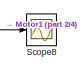
[diagram: root canvas - part 1/4, top right region]
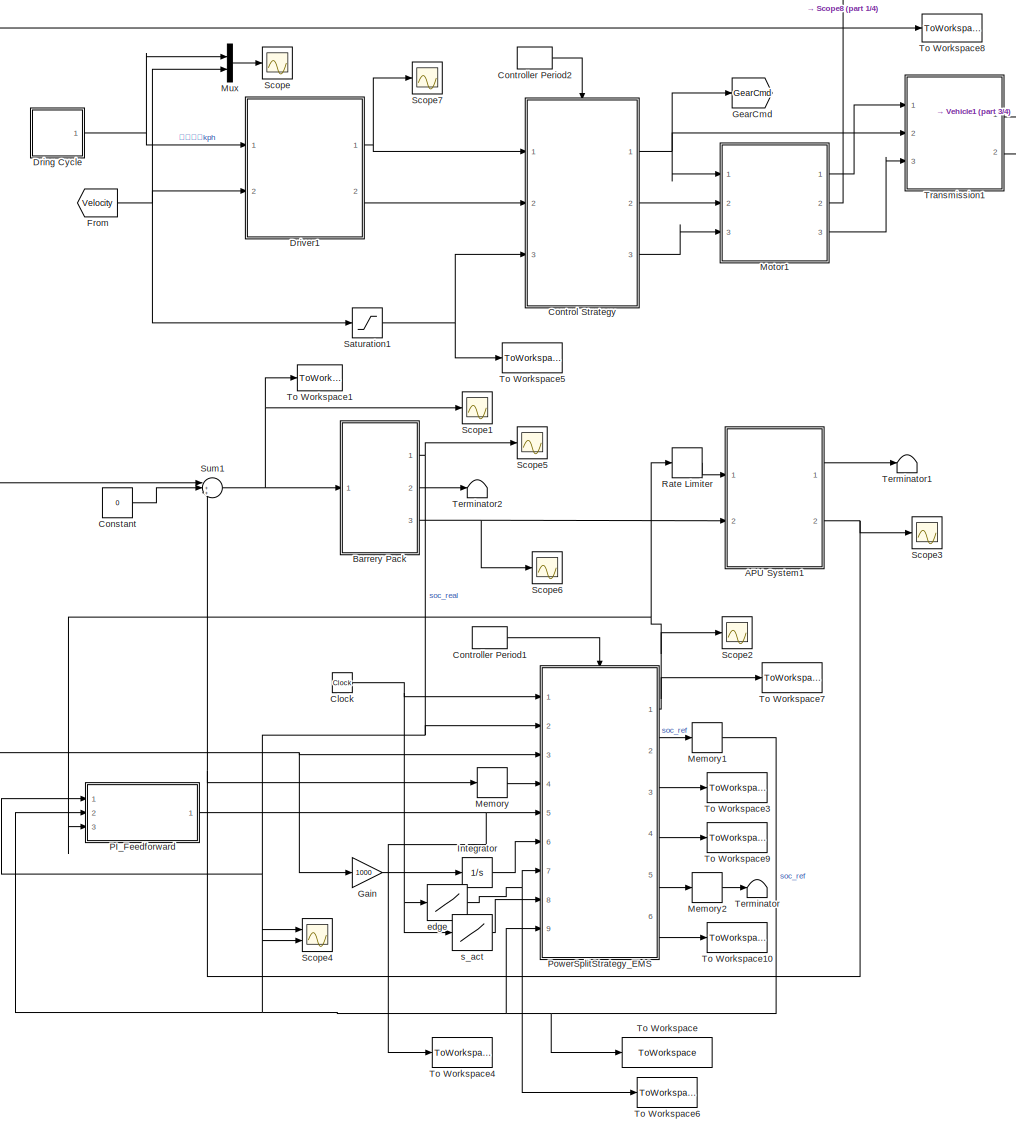
[diagram: root canvas - part 2/4, center side, full height]
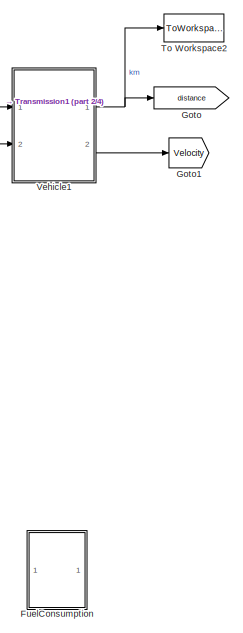
[diagram: root canvas - part 3/4, middle right region]
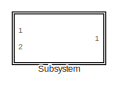
[diagram: root canvas - part 4/4, bottom left region]
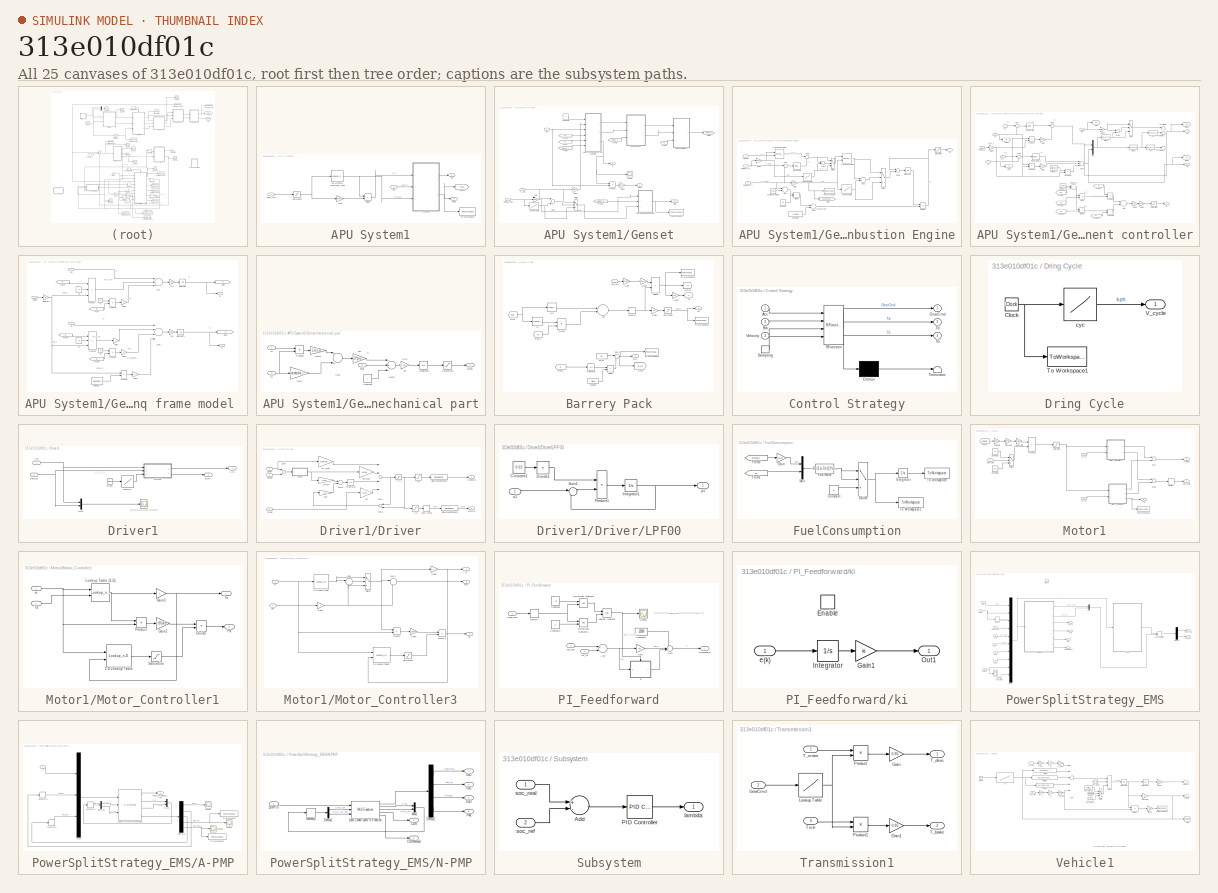
[diagram: thumbnail index - all 25 canvases of the model, root first then tree order]
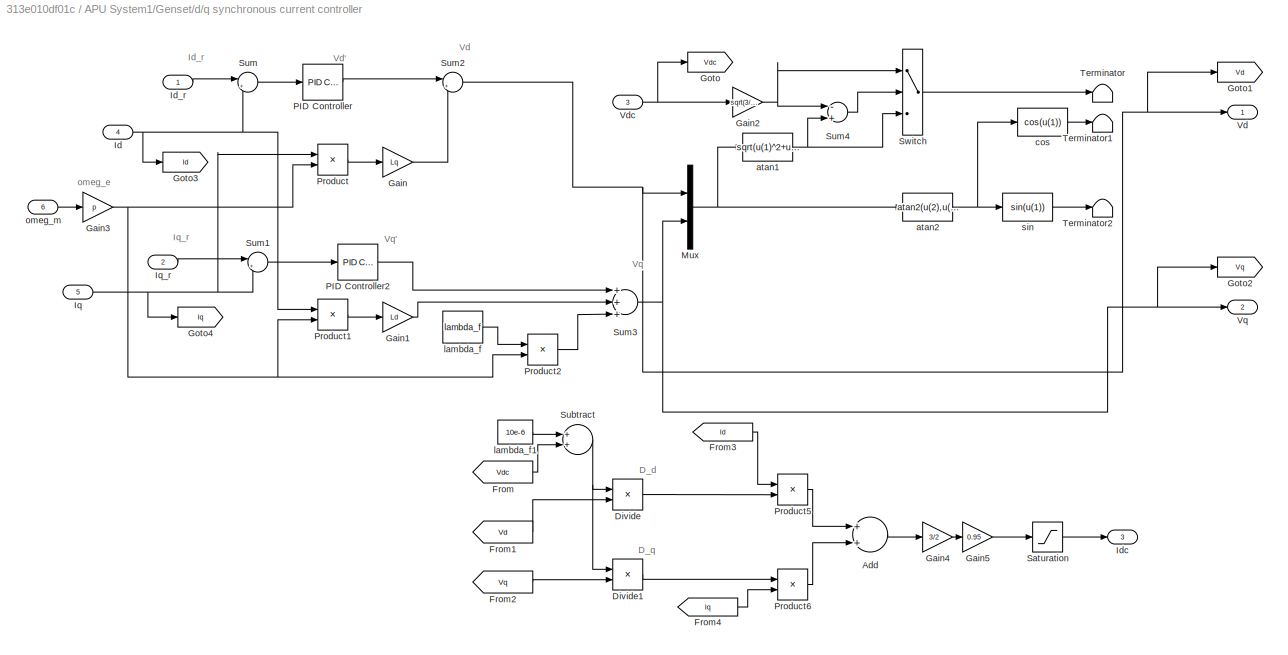
MODEL slx_313e010df01c
KIND model
CONFIG AbsTol = auto
CONFIG EnableMultiTasking = on
CONFIG FixedStep = 0.01
CONFIG MaxStep = auto
CONFIG MinStep = auto
CONFIG RelTol = 1e-3
CONFIG SampleTimeConstraint = Unconstrained
CONFIG Solver = ode14x
CONFIG SolverName = ode14x
CONFIG StartTime = 0.0
CONFIG StopTime = t_cyc(end)
BLOCK [SubSystem] APU System1
  Ports = [2, 2]
  RequestExecContextInheritance = off
  Variant = off
BLOCK [Lookup_n-D] APU System1/APU Optimal Operating LIne2 
  BreakpointsForDimension1 = PgOpt
  NumberOfTableDimensions = 1
  Ports = [1, 1]
  Table = nOpt
BLOCK [Product] APU System1/Divide1
  InputSameDT = off
  Inputs = /*
  OutDataTypeStr = Inherit: Inherit via internal rule
  Ports = [2, 1]
  RndMeth = Floor
  SaturateOnIntegerOverflow = off
BLOCK [Gain] APU System1/Gain
  Gain = 9549
  OutDataTypeStr = Inherit: Inherit via internal rule
  ParamDataTypeStr = Inherit: Inherit via internal rule
  SaturateOnIntegerOverflow = off
BLOCK [SubSystem] APU System1/Genset
  Ports = [3, 2]
  RequestExecContextInheritance = off
  Variant = off
BLOCK [Sum] APU System1/Genset/Add2
  InputSameDT = off
  Inputs = -+
  OutDataTypeStr = Inherit: Inherit via internal rule
  Ports = [2, 1]
  SaturateOnIntegerOverflow = off
BLOCK [Constant] APU System1/Genset/Constant2
  Value = 0
BLOCK [From] APU System1/Genset/From
  GotoTag = iq
  TagVisibility = global
BLOCK [From] APU System1/Genset/From1
  GotoTag = id
  TagVisibility = global
BLOCK [From] APU System1/Genset/From2
  GotoTag = Te
  TagVisibility = global
BLOCK [From] APU System1/Genset/From3
  GotoTag = omega_e
  TagVisibility = global
BLOCK [From] APU System1/Genset/From4
  GotoTag = omega_e
  TagVisibility = global
BLOCK [From] APU System1/Genset/From5
  GotoTag = omega_e
  TagVisibility = global
BLOCK [Gain] APU System1/Genset/Gain
  Gain = pi/30
  OutDataTypeStr = Inherit: Inherit via internal rule
  ParamDataTypeStr = Inherit: Inherit via internal rule
  SaturateOnIntegerOverflow = off
BLOCK [Gain] APU System1/Genset/Gain2
  Gain = 2/3/(p*lambda_f)
  OutDataTypeStr = Inherit: Inherit via internal rule
  ParamDataTypeStr = Inherit: Inherit via internal rule
  SaturateOnIntegerOverflow = off
BLOCK [Gain] APU System1/Genset/Gain3
  Gain = 1/1000
  OutDataTypeStr = Inherit: Inherit via internal rule
  ParamDataTypeStr = Inherit: Inherit via internal rule
  SaturateOnIntegerOverflow = off
BLOCK [Goto] APU System1/Genset/Goto
  GotoTag = Te
  TagVisibility = global
BLOCK [Goto] APU System1/Genset/Goto1
  GotoTag = omega_e
  TagVisibility = global
BLOCK [Outport] APU System1/Genset/Ig
  IconDisplay = Port number
  VectorParamsAs1DForOutWhenUnconnected = on
BLOCK [SubSystem] APU System1/Genset/Internal Combustion Engine
  Ports = [3, 1]
  RequestExecContextInheritance = off
  Variant = off
BLOCK [Lookup_n-D] APU System1/Genset/Internal Combustion Engine/2-D Lookup Table
  BreakpointsForDimension1 = 0:0.1:5
  BreakpointsForDimension2 = 1000:250:3000
  Ports = [2, 1]
  Table = BrakeTorque'
BLOCK [Lookup_n-D] APU System1/Genset/Internal Combustion Engine/2-D Lookup Table1
  BreakpointsForDimension1 = 1000:250:3000
  BreakpointsForDimension2 = 0:5:275
  Ports = [2, 1]
  Table = fuelrate
BLOCK [Sum] APU System1/Genset/Internal Combustion Engine/Add
  InputSameDT = off
  OutDataTypeStr = Inherit: Inherit via internal rule
  Ports = [2, 1]
  SaturateOnIntegerOverflow = off
BLOCK [Sum] APU System1/Genset/Internal Combustion Engine/Add1
  InputSameDT = off
  OutDataTypeStr = Inherit: Inherit via internal rule
  Ports = [2, 1]
  SaturateOnIntegerOverflow = off
BLOCK [Sum] APU System1/Genset/Internal Combustion Engine/Add2
  InputSameDT = off
  Inputs = -+
  OutDataTypeStr = Inherit: Inherit via internal rule
  Ports = [2, 1]
  SaturateOnIntegerOverflow = off
BLOCK [Sum] APU System1/Genset/Internal Combustion Engine/Add3
  InputSameDT = off
  Inputs = -+
  OutDataTypeStr = Inherit: Inherit via internal rule
  Ports = [2, 1]
  SaturateOnIntegerOverflow = off
BLOCK [Constant] APU System1/Genset/Internal Combustion Engine/Constant
  Value = 25
BLOCK [Constant] APU System1/Genset/Internal Combustion Engine/Constant1
  Value = 0.0029
BLOCK [Product] APU System1/Genset/Internal Combustion Engine/Divide
  InputSameDT = off
  Inputs = /*
  OutDataTypeStr = Inherit: Inherit via internal rule
  Ports = [2, 1]
  RndMeth = Floor
  SaturateOnIntegerOverflow = off
BLOCK [Product] APU System1/Genset/Internal Combustion Engine/Divide1
  InputSameDT = off
  Inputs = */
  OutDataTypeStr = Inherit: Inherit via internal rule
  Ports = [2, 1]
  RndMeth = Floor
  SaturateOnIntegerOverflow = off
BLOCK [Gain] APU System1/Genset/Internal Combustion Engine/Gain
  Gain = 30/pi
  OutDataTypeStr = Inherit: Inherit via internal rule
  ParamDataTypeStr = Inherit: Inherit via internal rule
  SaturateOnIntegerOverflow = off
BLOCK [Gain] APU System1/Genset/Internal Combustion Engine/Gain1
  Gain = 30/pi
  OutDataTypeStr = Inherit: Inherit via internal rule
  ParamDataTypeStr = Inherit: Inherit via internal rule
  SaturateOnIntegerOverflow = off
BLOCK [Goto] APU System1/Genset/Internal Combustion Engine/Goto
  GotoTag = EngineSpeed
  TagVisibility = global
BLOCK [Integrator] APU System1/Genset/Internal Combustion Engine/Integrator
  Ports = [1, 1]
BLOCK [Lookup] APU System1/Genset/Internal Combustion Engine/Lookup Table
  InputValues = [850,1000,1250,1500,1750,2000,2250,2500,2750,3000,3250,3500,3750,4000]
  SaturateOnIntegerOverflow = off
  Table = [195,195,195,195.9,244.1,270.2,272.7,269.1,266.6,261.5,257.7,242.9,229.9,221.4]
BLOCK [Lookup] APU System1/Genset/Internal Combustion Engine/Lookup Table1
  InputValues = [1000,1250,1500,1750,2000,2250,2500,2750,3000]
  SaturateOnIntegerOverflow = off
  Table = MaxFuelRate
BLOCK [Reference] APU System1/Genset/Internal Combustion Engine/PID Controller  REF=simulink/Continuous/PID Controller
  Ports = [1, 1]
  SourceBlock = simulink/Continuous/PID Controller
  SourceProductBaseCode = SL
  SourceProductName = Simulink
  SourceType = PID 1dof
BLOCK [Saturate] APU System1/Genset/Internal Combustion Engine/Saturation
  InputPortMap = u0
  LinearizeAsGain = off
  LowerLimit = 0
  Ports = [1, 1]
  UpperLimit = 280
BLOCK [Sum] APU System1/Genset/Internal Combustion Engine/Sum
  IconShape = round
  InputSameDT = off
  Inputs = |+-
  OutDataTypeStr = Inherit: Inherit via internal rule
  Ports = [2, 1]
  SaturateOnIntegerOverflow = off
BLOCK [Sum] APU System1/Genset/Internal Combustion Engine/Sum1
  InputSameDT = off
  Inputs = -+
  OutDataTypeStr = Inherit: Inherit via internal rule
  Ports = [2, 1]
  SaturateOnIntegerOverflow = off
BLOCK [Sum] APU System1/Genset/Internal Combustion Engine/Sum2
  IconShape = round
  InputSameDT = off
  Inputs = |++
  OutDataTypeStr = Inherit: Inherit via internal rule
  Ports = [2, 1]
  SaturateOnIntegerOverflow = off
BLOCK [Switch] APU System1/Genset/Internal Combustion Engine/Switch
  InputSameDT = off
  SaturateOnIntegerOverflow = off
BLOCK [Switch] APU System1/Genset/Internal Combustion Engine/Switch1
  InputSameDT = off
  SaturateOnIntegerOverflow = off
BLOCK [Outport] APU System1/Genset/Internal Combustion Engine/Te
  IconDisplay = Port number
  VectorParamsAs1DForOutWhenUnconnected = on
BLOCK [ToWorkspace] APU System1/Genset/Internal Combustion Engine/To Workspace
  MaxDataPoints = inf
  Ports = [1]
  SampleTime = -1
  Save2DSignal = 3-D array (concatenate along third dimension)
  VariableName = EngineSpeed
BLOCK [Inport] APU System1/Genset/Internal Combustion Engine/Torque
  IconDisplay = Port number
  Port = 3
BLOCK [Constant] APU System1/Genset/Internal Combustion Engine/avoid zero divide
  Value = 10e-6
BLOCK [Inport] APU System1/Genset/Internal Combustion Engine/omega_e_r
  IconDisplay = Port number
BLOCK [Inport] APU System1/Genset/Internal Combustion Engine/omega_e电机
  IconDisplay = Port number
  Port = 2
BLOCK [Lookup] APU System1/Genset/Lookup Table
  InputValues = [850,1000,1250,1500,1750,2000,2250,2500,2750,3000,3250,3500,3750,4000]
  SaturateOnIntegerOverflow = off
  Table = [195,195,195,195.9,244.1,270.2,272.7,269.1,266.6,261.5,257.7,242.9,229.9,221.4]
BLOCK [Outport] APU System1/Genset/Papu
  IconDisplay = Port number
  Port = 2
  VectorParamsAs1DForOutWhenUnconnected = on
BLOCK [Product] APU System1/Genset/Product
  InputSameDT = off
  OutDataTypeStr = Inherit: Inherit via internal rule
  Ports = [2, 1]
  SaturateOnIntegerOverflow = off
BLOCK [Scope] APU System1/Genset/Scope
  NumInputPorts = 1
  Ports = [1]
  ScopeSpecificationString = Simulink.scopes.TimeScopeBlockCfg('CurrentConfiguration', extmgr.ConfigurationSet(extmgr.Configuration('Core','General UI',true),extmgr.Configuration('Core','Source UI',true),extmgr.Configuration('Sources','WiredSimulink',true,'DataLoggingVariableName','ScopeData2'),extmgr.Configuration('Visuals','Time Domain',true,'SerializedDisplays',{struct('MinYLimReal','-21.56313','MaxYLimReal','194.06817','Y...<+1459ch>
BLOCK [Switch] APU System1/Genset/Switch
  InputSameDT = off
  SaturateOnIntegerOverflow = off
BLOCK [Inport] APU System1/Genset/T_cmd
  IconDisplay = Port number
BLOCK [ToWorkspace] APU System1/Genset/To Workspace
  MaxDataPoints = inf
  Ports = [1]
  SampleTime = -1
  Save2DSignal = 3-D array (concatenate along third dimension)
  VariableName = EngineTorque
BLOCK [Inport] APU System1/Genset/Vdc
  IconDisplay = Port number
  Port = 2
BLOCK [SubSystem] APU System1/Genset/d//q synchronous current controller
  Ports = [6, 3]
  RequestExecContextInheritance = off
  Variant = off
BLOCK [Sum] APU System1/Genset/d//q synchronous current controller/Add
  InputSameDT = off
  OutDataTypeStr = Inherit: Inherit via internal rule
  Ports = [2, 1]
  SaturateOnIntegerOverflow = off
BLOCK [Product] APU System1/Genset/d//q synchronous current controller/Divide
  InputSameDT = off
  Inputs = /*
  OutDataTypeStr = Inherit: Inherit via internal rule
  Ports = [2, 1]
  RndMeth = Floor
  SaturateOnIntegerOverflow = off
BLOCK [Product] APU System1/Genset/d//q synchronous current controller/Divide1
  InputSameDT = off
  Inputs = /*
  OutDataTypeStr = Inherit: Inherit via internal rule
  Ports = [2, 1]
  RndMeth = Floor
  SaturateOnIntegerOverflow = off
BLOCK [From] APU System1/Genset/d//q synchronous current controller/From
  GotoTag = Vdc
BLOCK [From] APU System1/Genset/d//q synchronous current controller/From1
  GotoTag = Vd
BLOCK [From] APU System1/Genset/d//q synchronous current controller/From2
  GotoTag = Vq
BLOCK [From] APU System1/Genset/d//q synchronous current controller/From3
  GotoTag = Id
BLOCK [From] APU System1/Genset/d//q synchronous current controller/From4
  GotoTag = Iq
BLOCK [Gain] APU System1/Genset/d//q synchronous current controller/Gain
  Gain = Lq
  OutDataTypeStr = Inherit: Inherit via internal rule
  ParamDataTypeStr = Inherit: Inherit via internal rule
  SaturateOnIntegerOverflow = off
BLOCK [Gain] APU System1/Genset/d//q synchronous current controller/Gain1
  Gain = Ld
  OutDataTypeStr = Inherit: Inherit via internal rule
  ParamDataTypeStr = Inherit: Inherit via internal rule
  SaturateOnIntegerOverflow = off
BLOCK [Gain] APU System1/Genset/d//q synchronous current controller/Gain2
  Gain = sqrt(3/2)/2
  OutDataTypeStr = Inherit: Inherit via internal rule
  ParamDataTypeStr = Inherit: Inherit via internal rule
  SaturateOnIntegerOverflow = off
BLOCK [Gain] APU System1/Genset/d//q synchronous current controller/Gain3
  Gain = p
  OutDataTypeStr = Inherit: Inherit via internal rule
  ParamDataTypeStr = Inherit: Inherit via internal rule
  SaturateOnIntegerOverflow = off
BLOCK [Gain] APU System1/Genset/d//q synchronous current controller/Gain4
  Gain = 3/2
  OutDataTypeStr = Inherit: Inherit via internal rule
  ParamDataTypeStr = Inherit: Inherit via internal rule
  SaturateOnIntegerOverflow = off
BLOCK [Gain] APU System1/Genset/d//q synchronous current controller/Gain5
  Gain = 0.95
  OutDataTypeStr = Inherit: Inherit via internal rule
  ParamDataTypeStr = Inherit: Inherit via internal rule
  SaturateOnIntegerOverflow = off
BLOCK [Goto] APU System1/Genset/d//q synchronous current controller/Goto
  GotoTag = Vdc
BLOCK [Goto] APU System1/Genset/d//q synchronous current controller/Goto1
  GotoTag = Vd
BLOCK [Goto] APU System1/Genset/d//q synchronous current controller/Goto2
  GotoTag = Vq
BLOCK [Goto] APU System1/Genset/d//q synchronous current controller/Goto3
  GotoTag = Id
BLOCK [Goto] APU System1/Genset/d//q synchronous current controller/Goto4
  GotoTag = Iq
BLOCK [Inport] APU System1/Genset/d//q synchronous current controller/Id
  IconDisplay = Port number
  Port = 4
BLOCK [Inport] APU System1/Genset/d//q synchronous current controller/Id_r
  IconDisplay = Port number
BLOCK [Outport] APU System1/Genset/d//q synchronous current controller/Idc
  IconDisplay = Port number
  Port = 3
  VectorParamsAs1DForOutWhenUnconnected = on
BLOCK [Inport] APU System1/Genset/d//q synchronous current controller/Iq
  IconDisplay = Port number
  Port = 5
BLOCK [Inport] APU System1/Genset/d//q synchronous current controller/Iq_r
  IconDisplay = Port number
  Port = 2
BLOCK [Mux] APU System1/Genset/d//q synchronous current controller/Mux
  DisplayOption = bar
  Inputs = 2
  Ports = [2, 1]
BLOCK [Reference] APU System1/Genset/d//q synchronous current controller/PID Controller  REF=simulink/Continuous/PID Controller
  Ports = [1, 1]
  SourceBlock = simulink/Continuous/PID Controller
  SourceProductBaseCode = SL
  SourceProductName = Simulink
  SourceType = PID 1dof
BLOCK [Reference] APU System1/Genset/d//q synchronous current controller/PID Controller2  REF=simulink/Continuous/PID Controller
  Ports = [1, 1]
  SourceBlock = simulink/Continuous/PID Controller
  SourceProductBaseCode = SL
  SourceProductName = Simulink
  SourceType = PID 1dof
BLOCK [Product] APU System1/Genset/d//q synchronous current controller/Product
  InputSameDT = off
  OutDataTypeStr = Inherit: Inherit via internal rule
  Ports = [2, 1]
  SaturateOnIntegerOverflow = off
BLOCK [Product] APU System1/Genset/d//q synchronous current controller/Product1
  InputSameDT = off
  OutDataTypeStr = Inherit: Inherit via internal rule
  Ports = [2, 1]
  SaturateOnIntegerOverflow = off
BLOCK [Product] APU System1/Genset/d//q synchronous current controller/Product2
  InputSameDT = off
  OutDataTypeStr = Inherit: Inherit via internal rule
  Ports = [2, 1]
  SaturateOnIntegerOverflow = off
BLOCK [Product] APU System1/Genset/d//q synchronous current controller/Product5
  InputSameDT = off
  OutDataTypeStr = Inherit: Inherit via internal rule
  Ports = [2, 1]
  SaturateOnIntegerOverflow = off
BLOCK [Product] APU System1/Genset/d//q synchronous current controller/Product6
  InputSameDT = off
  OutDataTypeStr = Inherit: Inherit via internal rule
  Ports = [2, 1]
  SaturateOnIntegerOverflow = off
BLOCK [Saturate] APU System1/Genset/d//q synchronous current controller/Saturation
  InputPortMap = u0
  LowerLimit = 0
  Ports = [1, 1]
  UpperLimit = 180
BLOCK [Sum] APU System1/Genset/d//q synchronous current controller/Subtract
  InputSameDT = off
  OutDataTypeStr = Inherit: Inherit via internal rule
  Ports = [2, 1]
  SaturateOnIntegerOverflow = off
BLOCK [Sum] APU System1/Genset/d//q synchronous current controller/Sum
  IconShape = round
  InputSameDT = off
  Inputs = |+-
  OutDataTypeStr = Inherit: Inherit via internal rule
  Ports = [2, 1]
  SaturateOnIntegerOverflow = off
BLOCK [Sum] APU System1/Genset/d//q synchronous current controller/Sum1
  IconShape = round
  InputSameDT = off
  Inputs = |+-
  OutDataTypeStr = Inherit: Inherit via internal rule
  Ports = [2, 1]
  SaturateOnIntegerOverflow = off
BLOCK [Sum] APU System1/Genset/d//q synchronous current controller/Sum2
  IconShape = round
  InputSameDT = off
  Inputs = |+-
  OutDataTypeStr = Inherit: Inherit via internal rule
  Ports = [2, 1]
  SaturateOnIntegerOverflow = off
BLOCK [Sum] APU System1/Genset/d//q synchronous current controller/Sum3
  InputSameDT = off
  Inputs = +++
  OutDataTypeStr = Inherit: Inherit via internal rule
  Ports = [3, 1]
  SaturateOnIntegerOverflow = off
BLOCK [Sum] APU System1/Genset/d//q synchronous current controller/Sum4
  InputSameDT = off
  Inputs = -+
  OutDataTypeStr = Inherit: Inherit via internal rule
  Ports = [2, 1]
  SaturateOnIntegerOverflow = off
BLOCK [Switch] APU System1/Genset/d//q synchronous current controller/Switch
  InputSameDT = off
  SaturateOnIntegerOverflow = off
BLOCK [Terminator] APU System1/Genset/d//q synchronous current controller/Terminator
BLOCK [Terminator] APU System1/Genset/d//q synchronous current controller/Terminator1
BLOCK [Terminator] APU System1/Genset/d//q synchronous current controller/Terminator2
BLOCK [Outport] APU System1/Genset/d//q synchronous current controller/Vd
  IconDisplay = Port number
  VectorParamsAs1DForOutWhenUnconnected = on
BLOCK [Inport] APU System1/Genset/d//q synchronous current controller/Vdc
  IconDisplay = Port number
  Port = 3
BLOCK [Outport] APU System1/Genset/d//q synchronous current controller/Vq
  IconDisplay = Port number
  Port = 2
  VectorParamsAs1DForOutWhenUnconnected = on
BLOCK [Fcn] APU System1/Genset/d//q synchronous current controller/atan1
  Expr = sqrt(u(1)^2+u(2)^2)
BLOCK [Fcn] APU System1/Genset/d//q synchronous current controller/atan2
  Expr = atan2(u(2),u(1))
BLOCK [Fcn] APU System1/Genset/d//q synchronous current controller/cos
  Expr = cos(u(1))
BLOCK [Constant] APU System1/Genset/d//q synchronous current controller/lambda_f
  Value = lambda_f
BLOCK [Constant] APU System1/Genset/d//q synchronous current controller/lambda_f1
  Value = 10e-6
BLOCK [Inport] APU System1/Genset/d//q synchronous current controller/omeg_m
  IconDisplay = Port number
  Port = 6
BLOCK [Fcn] APU System1/Genset/d//q synchronous current controller/sin
  Expr = sin(u(1))
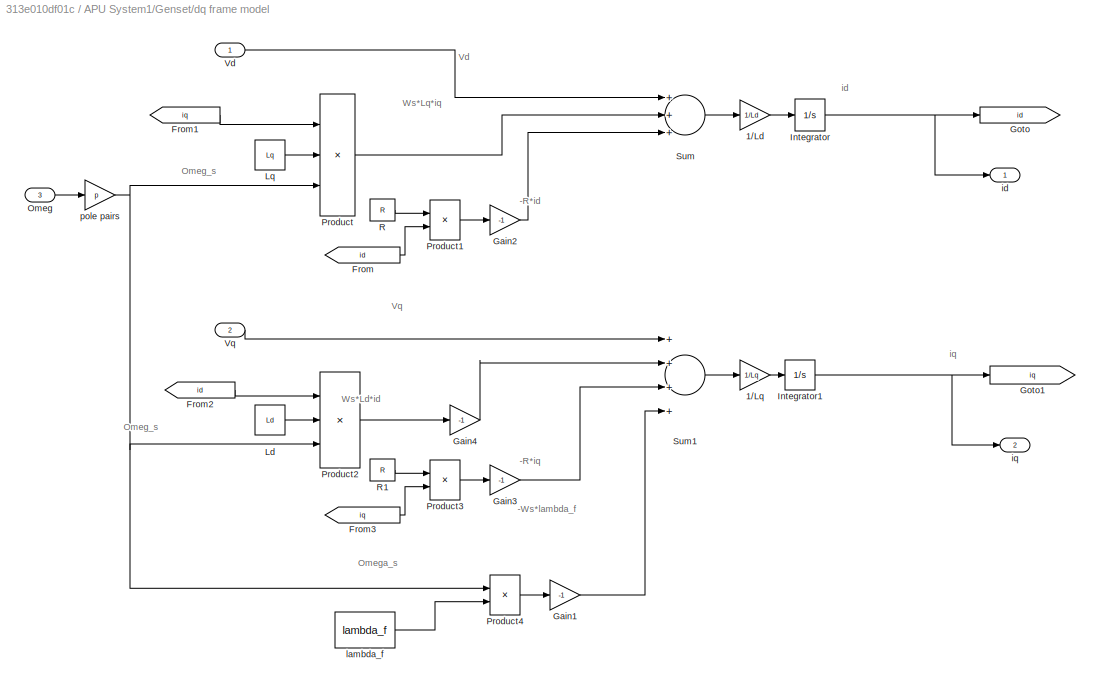
BLOCK [SubSystem] APU System1/Genset/dq frame model 
  Ports = [3, 2]
  RequestExecContextInheritance = off
  Variant = off
BLOCK [Gain] APU System1/Genset/dq frame model /1//Ld
  Gain = 1/Ld
  OutDataTypeStr = Inherit: Inherit via internal rule
  ParamDataTypeStr = Inherit: Inherit via internal rule
  SaturateOnIntegerOverflow = off
BLOCK [Gain] APU System1/Genset/dq frame model /1//Lq
  Gain = 1/Lq
  OutDataTypeStr = Inherit: Inherit via internal rule
  ParamDataTypeStr = Inherit: Inherit via internal rule
  SaturateOnIntegerOverflow = off
BLOCK [From] APU System1/Genset/dq frame model /From
  GotoTag = id
  TagVisibility = global
BLOCK [From] APU System1/Genset/dq frame model /From1
  GotoTag = iq
  TagVisibility = global
BLOCK [From] APU System1/Genset/dq frame model /From2
  GotoTag = id
  TagVisibility = global
BLOCK [From] APU System1/Genset/dq frame model /From3
  GotoTag = iq
  TagVisibility = global
BLOCK [Gain] APU System1/Genset/dq frame model /Gain1
  Gain = -1
  OutDataTypeStr = Inherit: Inherit via internal rule
  ParamDataTypeStr = Inherit: Inherit via internal rule
  SaturateOnIntegerOverflow = off
BLOCK [Gain] APU System1/Genset/dq frame model /Gain2
  Gain = -1
  OutDataTypeStr = Inherit: Inherit via internal rule
  ParamDataTypeStr = Inherit: Inherit via internal rule
  SaturateOnIntegerOverflow = off
BLOCK [Gain] APU System1/Genset/dq frame model /Gain3
  Gain = -1
  OutDataTypeStr = Inherit: Inherit via internal rule
  ParamDataTypeStr = Inherit: Inherit via internal rule
  SaturateOnIntegerOverflow = off
BLOCK [Gain] APU System1/Genset/dq frame model /Gain4
  Gain = -1
  OutDataTypeStr = Inherit: Inherit via internal rule
  ParamDataTypeStr = Inherit: Inherit via internal rule
  SaturateOnIntegerOverflow = off
BLOCK [Goto] APU System1/Genset/dq frame model /Goto
  GotoTag = id
  TagVisibility = global
BLOCK [Goto] APU System1/Genset/dq frame model /Goto1
  GotoTag = iq
  TagVisibility = global
BLOCK [Integrator] APU System1/Genset/dq frame model /Integrator
  Ports = [1, 1]
BLOCK [Integrator] APU System1/Genset/dq frame model /Integrator1
  LimitOutput = on
  LowerSaturationLimit = 0
  Ports = [1, 1]
  UpperSaturationLimit = 2/3/(p*lambda_f)*280
BLOCK [Constant] APU System1/Genset/dq frame model /Ld
  Value = Ld
BLOCK [Constant] APU System1/Genset/dq frame model /Lq
  Value = Lq
BLOCK [Inport] APU System1/Genset/dq frame model /Omeg
  IconDisplay = Port number
  Port = 3
BLOCK [Product] APU System1/Genset/dq frame model /Product
  InputSameDT = off
  Inputs = 3
  OutDataTypeStr = Inherit: Inherit via internal rule
  Ports = [3, 1]
  SaturateOnIntegerOverflow = off
BLOCK [Product] APU System1/Genset/dq frame model /Product1
  InputSameDT = off
  OutDataTypeStr = Inherit: Inherit via internal rule
  Ports = [2, 1]
  SaturateOnIntegerOverflow = off
BLOCK [Product] APU System1/Genset/dq frame model /Product2
  InputSameDT = off
  Inputs = 3
  OutDataTypeStr = Inherit: Inherit via internal rule
  Ports = [3, 1]
  SaturateOnIntegerOverflow = off
BLOCK [Product] APU System1/Genset/dq frame model /Product3
  InputSameDT = off
  OutDataTypeStr = Inherit: Inherit via internal rule
  Ports = [2, 1]
  SaturateOnIntegerOverflow = off
BLOCK [Product] APU System1/Genset/dq frame model /Product4
  InputSameDT = off
  OutDataTypeStr = Inherit: Inherit via internal rule
  Ports = [2, 1]
  SaturateOnIntegerOverflow = off
BLOCK [Constant] APU System1/Genset/dq frame model /R
  Value = R
BLOCK [Constant] APU System1/Genset/dq frame model /R1
  Value = R
BLOCK [Sum] APU System1/Genset/dq frame model /Sum
  InputSameDT = off
  Inputs = +++
  OutDataTypeStr = Inherit: Inherit via internal rule
  Ports = [3, 1]
  SaturateOnIntegerOverflow = off
BLOCK [Sum] APU System1/Genset/dq frame model /Sum1
  InputSameDT = off
  Inputs = ++++
  OutDataTypeStr = Inherit: Inherit via internal rule
  Ports = [4, 1]
  SaturateOnIntegerOverflow = off
BLOCK [Inport] APU System1/Genset/dq frame model /Vd
  IconDisplay = Port number
BLOCK [Inport] APU System1/Genset/dq frame model /Vq
  IconDisplay = Port number
  Port = 2
BLOCK [Outport] APU System1/Genset/dq frame model /id
  IconDisplay = Port number
  VectorParamsAs1DForOutWhenUnconnected = on
BLOCK [Outport] APU System1/Genset/dq frame model /iq
  IconDisplay = Port number
  Port = 2
  VectorParamsAs1DForOutWhenUnconnected = on
BLOCK [Constant] APU System1/Genset/dq frame model /lambda_f
  Value = lambda_f
BLOCK [Gain] APU System1/Genset/dq frame model /pole pairs
  Gain = p
  OutDataTypeStr = Inherit: Inherit via internal rule
  ParamDataTypeStr = Inherit: Inherit via internal rule
  SaturateOnIntegerOverflow = off
BLOCK [SubSystem] APU System1/Genset/mechanical part
  Ports = [3, 1]
  RequestExecContextInheritance = off
  Variant = off
BLOCK [Constant] APU System1/Genset/mechanical part/Constant
BLOCK [Gain] APU System1/Genset/mechanical part/Gain
  Gain = lambda_f
  OutDataTypeStr = Inherit: Inherit via internal rule
  ParamDataTypeStr = Inherit: Inherit via internal rule
  SaturateOnIntegerOverflow = off
BLOCK [Gain] APU System1/Genset/mechanical part/Gain1
  Gain = Ld-Lq
  OutDataTypeStr = Inherit: Inherit via internal rule
  ParamDataTypeStr = Inherit: Inherit via internal rule
  SaturateOnIntegerOverflow = off
BLOCK [Integrator] APU System1/Genset/mechanical part/Integrator
  InitialCondition = 1000*pi/30
  Ports = [1, 1]
BLOCK [Gain] APU System1/Genset/mechanical part/Jg
  Gain = 1/(Je+Jg)
  OutDataTypeStr = Inherit: Inherit via internal rule
  ParamDataTypeStr = Inherit: Inherit via internal rule
  SaturateOnIntegerOverflow = off
BLOCK [Gain] APU System1/Genset/mechanical part/Jg1
  Gain = 3*p/2
  OutDataTypeStr = Inherit: Inherit via internal rule
  ParamDataTypeStr = Inherit: Inherit via internal rule
  SaturateOnIntegerOverflow = off
BLOCK [Product] APU System1/Genset/mechanical part/Product
  InputSameDT = off
  OutDataTypeStr = Inherit: Inherit via internal rule
  Ports = [2, 1]
  SaturateOnIntegerOverflow = off
BLOCK [Saturate] APU System1/Genset/mechanical part/Saturation
  InputPortMap = u0
  LowerLimit = 750*pi/30
  Ports = [1, 1]
  UpperLimit = 3200*pi/30
BLOCK [Sum] APU System1/Genset/mechanical part/Sum
  InputSameDT = off
  OutDataTypeStr = Inherit: Inherit via internal rule
  Ports = [2, 1]
  SaturateOnIntegerOverflow = off
BLOCK [Sum] APU System1/Genset/mechanical part/Sum2
  InputSameDT = off
  Inputs = -+-
  OutDataTypeStr = Inherit: Inherit via internal rule
  Ports = [3, 1]
  SaturateOnIntegerOverflow = off
BLOCK [Inport] APU System1/Genset/mechanical part/Teng
  IconDisplay = Port number
  Port = 3
BLOCK [Inport] APU System1/Genset/mechanical part/id
  IconDisplay = Port number
BLOCK [Inport] APU System1/Genset/mechanical part/iq
  IconDisplay = Port number
  Port = 2
BLOCK [Outport] APU System1/Genset/mechanical part/omeg
  IconDisplay = Port number
  VectorParamsAs1DForOutWhenUnconnected = on
BLOCK [Inport] APU System1/Genset/omega_cmd
  IconDisplay = Port number
  Port = 3
BLOCK [Goto] APU System1/Goto
  GotoTag = Papu
  TagVisibility = global
BLOCK [Outport] APU System1/Idc
  IconDisplay = Port number
  VectorParamsAs1DForOutWhenUnconnected = on
BLOCK [Outport] APU System1/Papu
  IconDisplay = Port number
  Port = 2
  VectorParamsAs1DForOutWhenUnconnected = on
BLOCK [Inport] APU System1/Papu_cmd
  IconDisplay = Port number
BLOCK [Saturate] APU System1/Saturation
  InputPortMap = u0
  LowerLimit = 0
  Ports = [1, 1]
  UpperLimit = 75
BLOCK [ToWorkspace] APU System1/To Workspace1
  MaxDataPoints = inf
  Ports = [1]
  SampleTime = -1
  Save2DSignal = 3-D array (concatenate along third dimension)
  VariableName = Papu
BLOCK [Inport] APU System1/Vdc
  IconDisplay = Port number
  Port = 2
BLOCK [SubSystem] Barrery Pack
  Ports = [1, 3]
  RequestExecContextInheritance = off
  Variant = off
BLOCK [Sum] Barrery Pack/Add
  InputSameDT = off
  Inputs = +-
  OutDataTypeStr = Inherit: Inherit via internal rule
  Ports = [2, 1]
  SaturateOnIntegerOverflow = off
BLOCK [Product] Barrery Pack/Divide
  InputSameDT = off
  Inputs = */
  OutDataTypeStr = Inherit: Inherit via internal rule
  Ports = [2, 1]
  RndMeth = Floor
  SaturateOnIntegerOverflow = off
BLOCK [Product] Barrery Pack/Divide3
  InputSameDT = off
  Inputs = */
  OutDataTypeStr = Inherit: Inherit via internal rule
  Ports = [2, 1]
  RndMeth = Floor
  SaturateOnIntegerOverflow = off
BLOCK [From] Barrery Pack/From
  GotoTag = SOC
  TagVisibility = global
BLOCK [From] Barrery Pack/From1
  GotoTag = Ib
BLOCK [From] Barrery Pack/From2
  GotoTag = Ib
BLOCK [Gain] Barrery Pack/Gain
  Gain = 1000
  OutDataTypeStr = Inherit: Inherit via internal rule
  ParamDataTypeStr = Inherit: Inherit via internal rule
  SaturateOnIntegerOverflow = off
BLOCK [Gain] Barrery Pack/Gain2
  Gain = 1/(Np*Ns)
  OutDataTypeStr = Inherit: Inherit via internal rule
  ParamDataTypeStr = Inherit: Inherit via internal rule
  SaturateOnIntegerOverflow = off
BLOCK [Gain] Barrery Pack/Gain3
  Gain = Np
  OutDataTypeStr = Inherit: Inherit via internal rule
  ParamDataTypeStr = Inherit: Inherit via internal rule
  SaturateOnIntegerOverflow = off
BLOCK [Gain] Barrery Pack/Gain4
  Gain = Ns
  OutDataTypeStr = Inherit: Inherit via internal rule
  ParamDataTypeStr = Inherit: Inherit via internal rule
  SaturateOnIntegerOverflow = off
BLOCK [Goto] Barrery Pack/Goto
  GotoTag = SOC
  TagVisibility = global
BLOCK [Goto] Barrery Pack/Goto1
  GotoTag = Ib
BLOCK [Outport] Barrery Pack/Ib
  IconDisplay = Port number
  Port = 2
  VectorParamsAs1DForOutWhenUnconnected = on
BLOCK [Integrator] Barrery Pack/Integrator
  Ports = [1, 1]
BLOCK [Memory] Barrery Pack/Memory
  InitialCondition = 4
BLOCK [Inport] Barrery Pack/Pb_cmd
  IconDisplay = Port number
BLOCK [Product] Barrery Pack/Product
  InputSameDT = off
  OutDataTypeStr = Inherit: Inherit via internal rule
  Ports = [2, 1]
  RndMeth = Floor
  SaturateOnIntegerOverflow = off
BLOCK [Outport] Barrery Pack/SOC
  IconDisplay = Port number
  VectorParamsAs1DForOutWhenUnconnected = on
BLOCK [Constant] Barrery Pack/SOC0
  Value = x0
BLOCK [Saturate] Barrery Pack/Saturation
  InputPortMap = u0
  LowerLimit = 302.4
  Ports = [1, 1]
  UpperLimit = 453.6
BLOCK [Sum] Barrery Pack/Sum1
  IconShape = round
  InputSameDT = off
  Inputs = |+-
  OutDataTypeStr = Inherit: Inherit via internal rule
  Ports = [2, 1]
  SaturateOnIntegerOverflow = off
BLOCK [ToWorkspace] Barrery Pack/To Workspace1
  MaxDataPoints = inf
  Ports = [1]
  SampleTime = -1
  Save2DSignal = 3-D array (concatenate along third dimension)
  VariableName = Vb
BLOCK [ToWorkspace] Barrery Pack/To Workspace2
  MaxDataPoints = inf
  Ports = [1]
  SampleTime = -1
  Save2DSignal = 3-D array (concatenate along third dimension)
  VariableName = SoC
BLOCK [ToWorkspace] Barrery Pack/To Workspace3
  MaxDataPoints = inf
  Ports = [1]
  SampleTime = -1
  Save2DSignal = 3-D array (concatenate along third dimension)
  VariableName = Ib
BLOCK [Outport] Barrery Pack/Vb
  IconDisplay = Port number
  Port = 3
  VectorParamsAs1DForOutWhenUnconnected = on
BLOCK [Constant] Barrery Pack/capacity
  Value = Qmax
BLOCK [Lookup_n-D] Barrery Pack/ocv
  BreakpointsForDimension1 = ess_soc
  InternalRulePriority = Speed
  NumberOfTableDimensions = 1
  Ports = [1, 1]
  RndMeth = Simplest
  Table = ess_voc
BLOCK [Lookup_n-D] Barrery Pack/ro
  BreakpointsForDimension1 = ess_soc
  InternalRulePriority = Speed
  NumberOfTableDimensions = 1
  Ports = [1, 1]
  RndMeth = Simplest
  Table = ess_ro
BLOCK [Clock] Clock
BLOCK [Constant] Constant
  Value = 0
BLOCK [SubSystem] Control Strategy
  ErrorFcn = Stateflow.Translate.translate
  PermitHierarchicalResolution = ExplicitOnly
  Ports = [3, 3, 0, 1]
  RequestExecContextInheritance = off
  SFBlockType = Chart
  TreatAsAtomicUnit = on
  Variant = off
BLOCK [Demux] Control Strategy/ Demux 
  Outputs = 1
  Ports = [1, 1]
BLOCK [S-Function] Control Strategy/ SFunction 
  EnableBusSupport = on
  FunctionName = sf_sfun
  PortCounts = [4 4]
  Ports = [4, 4]
  SFcnIsStateOwnerBlock = off
  SFunctionDeploymentMode = off
  Tag = Stateflow S-Function Copy_of_NolinearPMP17b 2
BLOCK [Terminator] Control Strategy/ Terminator 
BLOCK [Inport] Control Strategy/Acc
  IconDisplay = Port number
BLOCK [Inport] Control Strategy/Bra
  IconDisplay = Port number
  Port = 2
BLOCK [Outport] Control Strategy/GearCmd
  IconDisplay = Port number
  VectorParamsAs1DForOutWhenUnconnected = on
BLOCK [TriggerPort] Control Strategy/Sampling
  Ports = [0, 1]
  ShowOutputPort = on
  StatesWhenEnabling = held
  VariantControl = (inherit)
BLOCK [Outport] Control Strategy/Tb
  IconDisplay = Port number
  Port = 3
  VectorParamsAs1DForOutWhenUnconnected = on
BLOCK [Outport] Control Strategy/Td
  IconDisplay = Port number
  Port = 2
  VectorParamsAs1DForOutWhenUnconnected = on
BLOCK [Inport] Control Strategy/Velocity
  IconDisplay = Port number
  Port = 3
BLOCK [DiscretePulseGenerator] Controller Period1
  Period = 1
  Ports = [0, 1]
  PulseType = Time based
  PulseWidth = 50
BLOCK [DiscretePulseGenerator] Controller Period2
  Period = 0.1
  Ports = [0, 1]
  PulseType = Time based
  PulseWidth = 10
BLOCK [SubSystem] Dring Cycle
  Ports = [0, 1]
  RequestExecContextInheritance = off
  Variant = off
BLOCK [Clock] Dring Cycle/Clock
BLOCK [ToWorkspace] Dring Cycle/To Workspace1
  MaxDataPoints = inf
  Ports = [1]
  SampleTime = -1
  Save2DSignal = 3-D array (concatenate along third dimension)
  VariableName = time
BLOCK [Outport] Dring Cycle/V_cycle
  IconDisplay = Port number
  VectorParamsAs1DForOutWhenUnconnected = on
BLOCK [Lookup] Dring Cycle/cyc
  InputValues = t_cyc
  LookUpMeth = Interpolation-Use End Values
  SaturateOnIntegerOverflow = off
  Table = v_cyc
BLOCK [SubSystem] Driver1
  Ports = [2, 2]
  RequestExecContextInheritance = off
  Variant = off
BLOCK [Outport] Driver1/ACC
  IconDisplay = Port number
  VectorParamsAs1DForOutWhenUnconnected = on
BLOCK [Outport] Driver1/BRK
  IconDisplay = Port number
  Port = 2
  VectorParamsAs1DForOutWhenUnconnected = on
BLOCK [Clock] Driver1/Clock
BLOCK [SubSystem] Driver1/Driver
  Ports = [3, 2]
  RequestExecContextInheritance = off
  Variant = off
BLOCK [Saturate] Driver1/Driver/-1 to 1 
  InputPortMap = u0
  LowerLimit = -1
  Ports = [1, 1]
  UpperLimit = 1
BLOCK [Saturate] Driver1/Driver/-1~0
  InputPortMap = u0
  LowerLimit = -1
  Ports = [1, 1]
  UpperLimit = 0
  ZeroCross = off
BLOCK [Saturate] Driver1/Driver/0~1
  InputPortMap = u0
  LowerLimit = 0
  Ports = [1, 1]
  UpperLimit = 1
  ZeroCross = off
BLOCK [Outport] Driver1/Driver/AccelCmd
  IconDisplay = Port number
  InitialOutput = 0
  VectorParamsAs1DForOutWhenUnconnected = on
BLOCK [Outport] Driver1/Driver/BrkCmd
  IconDisplay = Port number
  InitialOutput = 0
  Port = 2
  VectorParamsAs1DForOutWhenUnconnected = on
BLOCK [Inport] Driver1/Driver/Grade
  IconDisplay = Port number
  Port = 3
BLOCK [Integrator] Driver1/Driver/Integrator
  LimitOutput = on
  LowerSaturationLimit = -1
  Ports = [1, 1]
  UpperSaturationLimit = 1
BLOCK [Gain] Driver1/Driver/Kaw
  Gain = 0.1
BLOCK [Gain] Driver1/Driver/Kff//vnom
  Gain = 0.05/90
BLOCK [Gain] Driver1/Driver/Kg
  Gain = 0.01
BLOCK [Gain] Driver1/Driver/Ki//vnom
  Gain = 1/90
BLOCK [Gain] Driver1/Driver/Kp//vnom
  Gain = 15/90
BLOCK [SubSystem] Driver1/Driver/LPF00
  Ports = [1, 1]
  RequestExecContextInheritance = off
  Variant = off
BLOCK [Constant] Driver1/Driver/LPF00/Constant1
  SampleTime = -1
  Value = 0.03
BLOCK [Product] Driver1/Driver/LPF00/Divide1
  InputSameDT = off
  Inputs = /
  OutDataTypeStr = Inherit: Inherit via internal rule
  Ports = [1, 1]
  RndMeth = Floor
  SaturateOnIntegerOverflow = off
BLOCK [Integrator] Driver1/Driver/LPF00/Integrator1
  Ports = [1, 1]
BLOCK [Product] Driver1/Driver/LPF00/Product1
  InputSameDT = off
  OutDataTypeStr = Inherit: Inherit via internal rule
  Ports = [2, 1]
  SaturateOnIntegerOverflow = off
BLOCK [Sum] Driver1/Driver/LPF00/Sum1
  IconShape = round
  InputSameDT = off
  Inputs = |+-
  OutDataTypeStr = Inherit: Inherit via internal rule
  Ports = [2, 1]
  SaturateOnIntegerOverflow = off
BLOCK [Inport] Driver1/Driver/LPF00/u1
  IconDisplay = Port number
BLOCK [Outport] Driver1/Driver/LPF00/y1
  IconDisplay = Port number
  VectorParamsAs1DForOutWhenUnconnected = on
BLOCK [SignalSpecification] Driver1/Driver/Signal Specification2
BLOCK [SignalSpecification] Driver1/Driver/Signal Specification3
BLOCK [Sum] Driver1/Driver/Sum1
  Inputs = ++++
  Ports = [4, 1]
BLOCK [Sum] Driver1/Driver/Sum5
  Inputs = -+
  Ports = [2, 1]
BLOCK [Sum] Driver1/Driver/Sum7
  Inputs = +-
  Ports = [2, 1]
BLOCK [Sum] Driver1/Driver/Sum8
  Ports = [2, 1]
BLOCK [UnaryMinus] Driver1/Driver/Unary Minus
BLOCK [Inport] Driver1/Driver/VelFdbk
  IconDisplay = Port number
  Port = 2
BLOCK [Inport] Driver1/Driver/VelRef
  IconDisplay = Port number
BLOCK [Mux] Driver1/Mux1
  DisplayOption = bar
  Inputs = 2
  Ports = [2, 1]
BLOCK [Inport] Driver1/Vd
  IconDisplay = Port number
BLOCK [Inport] Driver1/VehSpd
  IconDisplay = Port number
  Port = 2
BLOCK [Lookup] Driver1/alph_cyc
  InputValues = t_cyc
  SaturateOnIntegerOverflow = off
  Table = alph_cyc
BLOCK [Scope] Driver1/黄色-模型车速、蓝色-实际车速
  NumInputPorts = 1
  Ports = [1]
  ScopeSpecificationString = Simulink.scopes.TimeScopeBlockCfg('CurrentConfiguration', extmgr.ConfigurationSet(extmgr.Configuration('Core','General UI',true,'FigureColor',[0.156862745098039 0.156862745098039 0.156862745098039]),extmgr.Configuration('Core','Source UI',true),extmgr.Configuration('Sources','WiredSimulink',true,'DataLoggingSaveFormat','Array','DataLoggingDecimation','1','DataLoggingDecimateData',true),extmgr.Conf...<+2845ch>
BLOCK [From] From
  GotoTag = Velocity
BLOCK [SubSystem] FuelConsumption
  Ports = []
  RequestExecContextInheritance = off
  Variant = off
BLOCK [Constant] FuelConsumption/Constant
  Value = 0
BLOCK [From] FuelConsumption/From1
  GotoTag = Te
  TagVisibility = global
BLOCK [From] FuelConsumption/From3
  GotoTag = omega_e
  TagVisibility = global
BLOCK [Fcn] FuelConsumption/FuelRate
  Expr = Ce(1)+Ce(2)*u(1)+Ce(3)*u(2)+Ce(4)*u(1)*u(1)+Ce(5)*u(1)*u(2)+Ce(6)*u(2)*u(2)+Ce(7)*u(1)*u(1)*u(1)+Ce(8)*u(1)*u(1)*u(2)+Ce(9)*u(1)*u(2)*u(2)+Ce(10)*u(2)*u(2)*u(2)
BLOCK [Gain] FuelConsumption/Gain
  Gain = 30/pi
  OutDataTypeStr = Inherit: Inherit via internal rule
  ParamDataTypeStr = Inherit: Inherit via internal rule
  SaturateOnIntegerOverflow = off
BLOCK [Integrator] FuelConsumption/Integrator
  Ports = [1, 1]
BLOCK [Mux] FuelConsumption/Mux
  DisplayOption = bar
  Inputs = 2
  Ports = [2, 1]
BLOCK [Switch] FuelConsumption/Switch
  InputSameDT = off
  SaturateOnIntegerOverflow = off
BLOCK [ToWorkspace] FuelConsumption/To Workspace
  MaxDataPoints = inf
  Ports = [1]
  SampleTime = -1
  Save2DSignal = 3-D array (concatenate along third dimension)
  VariableName = CumulativeFC
BLOCK [ToWorkspace] FuelConsumption/To Workspace1
  MaxDataPoints = inf
  Ports = [1]
  SampleTime = -1
  Save2DSignal = 3-D array (concatenate along third dimension)
  VariableName = FC_instant
BLOCK [Gain] Gain
  Gain = 1000
  OutDataTypeStr = Inherit: Inherit via internal rule
  ParamDataTypeStr = Inherit: Inherit via internal rule
  SaturateOnIntegerOverflow = off
BLOCK [Goto] GearCmd
  GotoTag = GearCmd
  TagVisibility = global
BLOCK [Goto] Goto
  GotoTag = distance
BLOCK [Goto] Goto1
  GotoTag = Velocity
BLOCK [Integrator] Integrator
  Ports = [1, 1]
BLOCK [Memory] Memory
BLOCK [Memory] Memory1
BLOCK [Memory] Memory2
  InheritSampleTime = on
BLOCK [SubSystem] Motor1
  Ports = [3, 3]
  RequestExecContextInheritance = off
  Variant = off
BLOCK [Constant] Motor1/Constant1
  Value = 1.4
BLOCK [Constant] Motor1/Constant2
  Value = 4.9
BLOCK [From] Motor1/From
  CloseFcn = tagdialog Close
  GotoTag = Velocity
  TagVisibility = global
BLOCK [Memory] Motor1/Memory
  InheritSampleTime = on
BLOCK [SubSystem] Motor1/Motor_Controller1
  Ports = [2, 2]
  RequestExecContextInheritance = off
  Variant = off
BLOCK [Lookup_n-D] Motor1/Motor_Controller1/2-D Lookup Table
  BreakpointsForDimension1 = 0:500:4500
  BreakpointsForDimension2 = -850:50:850
  InternalRulePriority = Speed
  Ports = [2, 1]
  RndMeth = Simplest
  Table = eff_m
BLOCK [Product] Motor1/Motor_Controller1/Divide
  InputSameDT = off
  Inputs = */
  OutDataTypeStr = Inherit: Inherit via internal rule
  Ports = [2, 1]
  RndMeth = Floor
  SaturateOnIntegerOverflow = off
BLOCK [Gain] Motor1/Motor_Controller1/Gain2
  Gain = 1/9549
  OutDataTypeStr = Inherit: Inherit via internal rule
  ParamDataTypeStr = Inherit: Inherit via internal rule
  SaturateOnIntegerOverflow = off
BLOCK [Gain] Motor1/Motor_Controller1/Gain3
  OutDataTypeStr = Inherit: Inherit via internal rule
  ParamDataTypeStr = Inherit: Inherit via internal rule
  SaturateOnIntegerOverflow = off
BLOCK [Lookup_n-D] Motor1/Motor_Controller1/Lookup Table (3-D)
  BreakpointsForDimension1 = [500,1000,1500,2000,2500,3000,3500,4000,4200]
  BreakpointsForDimension2 = [0,800,1600,2400,3200,4000,4800,5600,6400,7200,8000]
  BreakpointsForDimension3 = [425,445]
  Ports = [2, 1]
  Table = Ta
BLOCK [Outport] Motor1/Motor_Controller1/Pa
  IconDisplay = Port number
  Port = 2
  VectorParamsAs1DForOutWhenUnconnected = on
BLOCK [Product] Motor1/Motor_Controller1/Product
  InputSameDT = off
  OutDataTypeStr = Inherit: Inherit via internal rule
  Ports = [2, 1]
  SaturateOnIntegerOverflow = off
BLOCK [Saturate] Motor1/Motor_Controller1/Saturation
  InputPortMap = u0
  LowerLimit = 0.1
  Ports = [1, 1]
  UpperLimit = 1
BLOCK [Outport] Motor1/Motor_Controller1/Ta
  IconDisplay = Port number
  VectorParamsAs1DForOutWhenUnconnected = on
BLOCK [Inport] Motor1/Motor_Controller1/Td
  IconDisplay = Port number
  Port = 2
BLOCK [Inport] Motor1/Motor_Controller1/w
  IconDisplay = Port number
BLOCK [SubSystem] Motor1/Motor_Controller3
  Ports = [2, 3]
  RequestExecContextInheritance = off
  Variant = off
BLOCK [Lookup_n-D] Motor1/Motor_Controller3/1-D Lookup Table
  BreakpointsForDimension1 = motor_nt(:,1)
  InternalRulePriority = Speed
  NumberOfTableDimensions = 1
  Ports = [1, 1]
  RndMeth = Simplest
  Table = motor_nt(:,2)*0.6
BLOCK [Lookup_n-D] Motor1/Motor_Controller3/2-D Lookup Table1
  BreakpointsForDimension1 = 0:500:4500
  BreakpointsForDimension2 = -850:50:850
  InternalRulePriority = Speed
  Ports = [2, 1]
  RndMeth = Simplest
  Table = eff_m
BLOCK [Gain] Motor1/Motor_Controller3/Gain1
  Gain = -1
  OutDataTypeStr = Inherit: Inherit via internal rule
  ParamDataTypeStr = Inherit: Inherit via internal rule
  SaturateOnIntegerOverflow = off
BLOCK [Gain] Motor1/Motor_Controller3/Gain4
  Gain = -1/9549
  OutDataTypeStr = Inherit: Inherit via internal rule
  ParamDataTypeStr = Inherit: Inherit via internal rule
  SaturateOnIntegerOverflow = off
BLOCK [Gain] Motor1/Motor_Controller3/Gain5
  Gain = -1
  OutDataTypeStr = Inherit: Inherit via internal rule
  ParamDataTypeStr = Inherit: Inherit via internal rule
  SaturateOnIntegerOverflow = off
BLOCK [Outport] Motor1/Motor_Controller3/Pb
  IconDisplay = Port number
  Port = 2
  VectorParamsAs1DForOutWhenUnconnected = on
BLOCK [Product] Motor1/Motor_Controller3/Product
  InputSameDT = off
  OutDataTypeStr = Inherit: Inherit via internal rule
  Ports = [2, 1]
  SaturateOnIntegerOverflow = off
BLOCK [Product] Motor1/Motor_Controller3/Product3
  InputSameDT = off
  OutDataTypeStr = Inherit: Inherit via internal rule
  Ports = [2, 1]
  SaturateOnIntegerOverflow = off
BLOCK [Saturate] Motor1/Motor_Controller3/Saturation2
  InputPortMap = u0
  LowerLimit = 0.1
  Ports = [1, 1]
  UpperLimit = 1
BLOCK [Sum] Motor1/Motor_Controller3/Sum
  IconShape = round
  InputSameDT = off
  Inputs = |-+
  OutDataTypeStr = Inherit: Inherit via internal rule
  Ports = [2, 1]
  SaturateOnIntegerOverflow = off
BLOCK [Sum] Motor1/Motor_Controller3/Sum1
  IconShape = round
  InputSameDT = off
  Inputs = |-+
  OutDataTypeStr = Inherit: Inherit via internal rule
  Ports = [2, 1]
  SaturateOnIntegerOverflow = off
BLOCK [Switch] Motor1/Motor_Controller3/Switch
  Criteria = u2 > Threshold
  InputSameDT = off
  SaturateOnIntegerOverflow = off
BLOCK [Outport] Motor1/Motor_Controller3/Tb
  IconDisplay = Port number
  VectorParamsAs1DForOutWhenUnconnected = on
BLOCK [Inport] Motor1/Motor_Controller3/Tbb
  IconDisplay = Port number
  Port = 2
BLOCK [Outport] Motor1/Motor_Controller3/Tmb
  IconDisplay = Port number
  Port = 3
  VectorParamsAs1DForOutWhenUnconnected = on
BLOCK [Inport] Motor1/Motor_Controller3/w
  IconDisplay = Port number
BLOCK [Outport] Motor1/Pdc_dmd
  IconDisplay = Port number
  Port = 2
  VectorParamsAs1DForOutWhenUnconnected = on
BLOCK [Product] Motor1/Product1
  InputSameDT = off
  OutDataTypeStr = Inherit: Inherit via internal rule
  Ports = [2, 1]
  SaturateOnIntegerOverflow = off
BLOCK [Saturate] Motor1/Saturation
  InputPortMap = u0
  LowerLimit = 0
  Ports = [1, 1]
  UpperLimit = 4200
  ZeroCross = off
BLOCK [Sum] Motor1/Sum
  InputSameDT = off
  OutDataTypeStr = Inherit: Inherit via internal rule
  Ports = [2, 1]
  SaturateOnIntegerOverflow = off
BLOCK [Sum] Motor1/Sum1
  InputSameDT = off
  OutDataTypeStr = Inherit: Inherit via internal rule
  Ports = [2, 1]
  SaturateOnIntegerOverflow = off
BLOCK [Switch] Motor1/Switch1
  InputSameDT = off
  SaturateOnIntegerOverflow = off
  Threshold = 2
  ZeroCross = off
BLOCK [Outport] Motor1/T_motor
  IconDisplay = Port number
  VectorParamsAs1DForOutWhenUnconnected = on
BLOCK [Outport] Motor1/Tmb
  IconDisplay = Port number
  Port = 3
  VectorParamsAs1DForOutWhenUnconnected = on
BLOCK [ToWorkspace] Motor1/To Workspace2
  Decimation = 100
  MaxDataPoints = inf
  Ports = [1]
  SampleTime = -1
  Save2DSignal = 3-D array (concatenate along third dimension)
  VariableName = Tmb
BLOCK [Inport] Motor1/gearcmd
  IconDisplay = Port number
BLOCK [Gain] Motor1/km//h2m//s
  Gain = 1/3.6
  OutDataTypeStr = Inherit: Inherit via internal rule
  ParamDataTypeStr = Inherit: Inherit via internal rule
  SaturateOnIntegerOverflow = off
BLOCK [Gain] Motor1/m//s2rad//s
  Gain = i0/r_wh
  OutDataTypeStr = Inherit: Inherit via internal rule
  ParamDataTypeStr = Inherit: Inherit via internal rule
  SaturateOnIntegerOverflow = off
BLOCK [Gain] Motor1/rad//s2r//min
  Gain = 30/pi
  OutDataTypeStr = Inherit: Inherit via internal rule
  ParamDataTypeStr = Inherit: Inherit via internal rule
  SaturateOnIntegerOverflow = off
BLOCK [Inport] Motor1/期望制动扭矩
  IconDisplay = Port number
  Port = 3
BLOCK [Inport] Motor1/期望驱动扭矩
  IconDisplay = Port number
  Port = 2
BLOCK [Mux] Mux
  DisplayOption = bar
  Inputs = 2
  Ports = [2, 1]
BLOCK [SubSystem] PI_Feedforward
  Ports = [3, 1]
  RequestExecContextInheritance = off
  Variant = off
BLOCK [Sum] PI_Feedforward/Add
  InputSameDT = off
  Inputs = +-
  OutDataTypeStr = Inherit: Inherit via internal rule
  Ports = [2, 1]
  SaturateOnIntegerOverflow = off
BLOCK [Constant] PI_Feedforward/Constant
  Value = 75
BLOCK [Constant] PI_Feedforward/Constant1
  Value = 0
BLOCK [Constant] PI_Feedforward/Constant2
  Value = -12500
BLOCK [Gain] PI_Feedforward/Gain
  Gain = kp
  OutDataTypeStr = Inherit: Inherit via internal rule
  ParamDataTypeStr = Inherit: Inherit via internal rule
  SaturateOnIntegerOverflow = off
BLOCK [Logic] PI_Feedforward/Logical Operator
  AllPortsSameDT = off
  OutDataTypeStr = boolean
  Ports = [2, 1]
BLOCK [Memory] PI_Feedforward/Memory
BLOCK [Inport] PI_Feedforward/Papu_cmd
  IconDisplay = Port number
  Port = 3
BLOCK [RelationalOperator] PI_Feedforward/Relational Operator
  InputSameDT = off
  OutDataTypeStr = boolean
  Ports = [2, 1]
  RndMeth = Simplest
BLOCK [RelationalOperator] PI_Feedforward/Relational Operator1
  InputSameDT = off
  OutDataTypeStr = boolean
  Ports = [2, 1]
  RndMeth = Simplest
BLOCK [Scope] PI_Feedforward/Scope1
  NumInputPorts = 1
  Ports = [1]
  ScopeSpecificationString = Simulink.scopes.TimeScopeBlockCfg('CurrentConfiguration', extmgr.ConfigurationSet(extmgr.Configuration('Core','General UI',true),extmgr.Configuration('Core','Source UI',true),extmgr.Configuration('Sources','WiredSimulink',true,'DataLoggingVariableName','ScopeData2'),extmgr.Configuration('Visuals','Time Domain',true,'SerializedDisplays',{struct('MinYLimReal','-0.125','MaxYLimReal','1.125','YLabelRe...<+1380ch>
BLOCK [Sum] PI_Feedforward/Sum
  IconShape = round
  InputSameDT = off
  Inputs = +++
  OutDataTypeStr = Inherit: Inherit via internal rule
  Ports = [3, 1]
  SaturateOnIntegerOverflow = off
BLOCK [SubSystem] PI_Feedforward/ki
  Ports = [1, 1, 1]
  RequestExecContextInheritance = off
  Variant = off
BLOCK [EnablePort] PI_Feedforward/ki/Enable
  Ports = []
BLOCK [Gain] PI_Feedforward/ki/Gain1
  Gain = ki
  OutDataTypeStr = Inherit: Inherit via internal rule
  ParamDataTypeStr = Inherit: Inherit via internal rule
  SaturateOnIntegerOverflow = off
BLOCK [Integrator] PI_Feedforward/ki/Integrator
  Ports = [1, 1]
BLOCK [Outport] PI_Feedforward/ki/Out1
  IconDisplay = Port number
  InitialOutput = 0
  OutputWhenDisabled = reset
BLOCK [Inport] PI_Feedforward/ki/e(k)
  IconDisplay = Port number
BLOCK [Inport] PI_Feedforward/soc_real
  IconDisplay = Port number
BLOCK [Inport] PI_Feedforward/soc_ref
  IconDisplay = Port number
  Port = 2
BLOCK [Outport] PI_Feedforward/u(lambda_k)
  IconDisplay = Port number
  InitialOutput = -13060
BLOCK [SubSystem] PowerSplitStrategy_EMS
  Ports = [9, 6, 0, 1]
  RequestExecContextInheritance = off
  Variant = off
BLOCK [SubSystem] PowerSplitStrategy_EMS/A-PMP
  Commented = on
  Ports = [1, 1]
  RequestExecContextInheritance = off
  Variant = off
BLOCK [Inport] PowerSplitStrategy_EMS/A-PMP/6
  IconDisplay = Port number
BLOCK [Demux] PowerSplitStrategy_EMS/A-PMP/Demux2
  DisplayOption = bar
  Outputs = 2
  Ports = [1, 2]
BLOCK [Demux] PowerSplitStrategy_EMS/A-PMP/Demux3
  DisplayOption = bar
  Outputs = 5
  Ports = [1, 5]
BLOCK [M-S-Function] PowerSplitStrategy_EMS/A-PMP/Level-2 MATLAB S-Function1
  FunctionName = msfun_EMS_newmodel
  Parameters = alph_cyc,s,t_cyc,v_cyc,trafficspeed,ess_soc,ess_voc,ess_ro,Np,Ns,Qmax,p2
  Ports = [3, 4]
BLOCK [Memory] PowerSplitStrategy_EMS/A-PMP/Memory2
  InheritSampleTime = on
BLOCK [Memory] PowerSplitStrategy_EMS/A-PMP/Memory3
  InheritSampleTime = on
BLOCK [Memory] PowerSplitStrategy_EMS/A-PMP/Memory4
  InheritSampleTime = on
BLOCK [Mux] PowerSplitStrategy_EMS/A-PMP/Mux2
  DisplayOption = bar
  Inputs = 3
  Ports = [3, 1]
BLOCK [Mux] PowerSplitStrategy_EMS/A-PMP/Mux3
  DisplayOption = bar
  Inputs = 2
  Ports = [2, 1]
BLOCK [Outport] PowerSplitStrategy_EMS/A-PMP/Papu_cmd&&soc_ref
  IconDisplay = Port number
  VectorParamsAs1DForOutWhenUnconnected = on
BLOCK [Scope] PowerSplitStrategy_EMS/A-PMP/Scope
  NumInputPorts = 1
  Ports = [1]
  ScopeSpecificationString = Simulink.scopes.TimeScopeBlockCfg('CurrentConfiguration', extmgr.ConfigurationSet(extmgr.Configuration('Core','General UI',true),extmgr.Configuration('Core','Source UI',true),extmgr.Configuration('Sources','WiredSimulink',true,'DataLoggingVariableName','ScopeData4'),extmgr.Configuration('Visuals','Time Domain',true,'SerializedDisplays',{struct('MinYLimReal','-0.29349','MaxYLimReal','2.64763','YLab...<+1445ch>
BLOCK [Scope] PowerSplitStrategy_EMS/A-PMP/Scope1
  NumInputPorts = 1
  Ports = [1]
  ScopeSpecificationString = Simulink.scopes.TimeScopeBlockCfg('CurrentConfiguration', extmgr.ConfigurationSet(extmgr.Configuration('Core','General UI',true),extmgr.Configuration('Core','Source UI',true),extmgr.Configuration('Sources','WiredSimulink',true,'DataLoggingVariableName','ScopeData3'),extmgr.Configuration('Visuals','Time Domain',true,'SerializedDisplays',{struct('MinYLimReal','34256.27372','MaxYLimReal','83935.93119...<+1394ch>
BLOCK [Scope] PowerSplitStrategy_EMS/A-PMP/Scope2
  NumInputPorts = 1
  Ports = [1]
  ScopeSpecificationString = Simulink.scopes.TimeScopeBlockCfg('CurrentConfiguration', extmgr.ConfigurationSet(extmgr.Configuration('Core','General UI',true),extmgr.Configuration('Core','Source UI',true),extmgr.Configuration('Sources','WiredSimulink',true,'DataLoggingVariableName','ScopeData1'),extmgr.Configuration('Visuals','Time Domain',true,'SerializedDisplays',{struct('MinYLimReal','-0.00178','MaxYLimReal','0.02064','YLab...<+1447ch>
BLOCK [ToWorkspace] PowerSplitStrategy_EMS/A-PMP/To Workspace
  MaxDataPoints = inf
  Ports = [1]
  SampleTime = -1
  Save2DSignal = 3-D array (concatenate along third dimension)
  VariableName = time_soc
BLOCK [ToWorkspace] PowerSplitStrategy_EMS/A-PMP/To Workspace1
  MaxDataPoints = inf
  Ports = [1]
  SampleTime = -1
  Save2DSignal = 3-D array (concatenate along third dimension)
  VariableName = time_Papu
BLOCK [Outport] PowerSplitStrategy_EMS/CDR
  IconDisplay = Port number
  Port = 4
BLOCK [Outport] PowerSplitStrategy_EMS/CDRMethod
  IconDisplay = Port number
  Port = 6
BLOCK [Demux] PowerSplitStrategy_EMS/Demux
  DisplayOption = bar
  Outputs = 2
  Ports = [1, 2]
BLOCK [ManualSwitch] PowerSplitStrategy_EMS/Manual Switch
  CurrentSetting = 0
BLOCK [Memory] PowerSplitStrategy_EMS/Memory
  InheritSampleTime = on
  InitialCondition = 1
BLOCK [Mux] PowerSplitStrategy_EMS/Mux
  DisplayOption = bar
  Inputs = 2
  Ports = [2, 1]
BLOCK [Mux] PowerSplitStrategy_EMS/Mux2
  DisplayOption = bar
  Inputs = 10
  Ports = [10, 1]
BLOCK [SubSystem] PowerSplitStrategy_EMS/N-PMP
  Ports = [1, 6]
  RequestExecContextInheritance = off
  Variant = off
BLOCK [Inport] PowerSplitStrategy_EMS/N-PMP/11INPUT
  IconDisplay = Port number
BLOCK [Outport] PowerSplitStrategy_EMS/N-PMP/CDR
  IconDisplay = Port number
  Port = 4
BLOCK [Outport] PowerSplitStrategy_EMS/N-PMP/CDRMethod
  IconDisplay = Port number
  Port = 6
BLOCK [Demux] PowerSplitStrategy_EMS/N-PMP/Demux1
  DisplayOption = bar
  Outputs = 2
  Ports = [1, 2]
BLOCK [Demux] PowerSplitStrategy_EMS/N-PMP/Demux2
  DisplayOption = bar
  Ports = [1, 4]
BLOCK [M-S-Function] PowerSplitStrategy_EMS/N-PMP/Level-2 MATLAB S-Function
  FunctionName = msfun_EMS_PMP
  Parameters = meanspeed,meangrade,ratio,PM,Qnom,regR,ess_soc,ess_voc,ess_ro,Ns,Np,K,p2,RefSpdLmt,distance_edge,VelDis
  Ports = [3, 5]
BLOCK [Memory] PowerSplitStrategy_EMS/N-PMP/Memory1
  InheritSampleTime = on
BLOCK [Mux] PowerSplitStrategy_EMS/N-PMP/Mux1
  DisplayOption = bar
  Inputs = 2
  Ports = [2, 1]
BLOCK [Outport] PowerSplitStrategy_EMS/N-PMP/Out1
  IconDisplay = Port number
  VectorParamsAs1DForOutWhenUnconnected = on
BLOCK [Outport] PowerSplitStrategy_EMS/N-PMP/Out2
  IconDisplay = Port number
  Port = 2
  VectorParamsAs1DForOutWhenUnconnected = on
BLOCK [Outport] PowerSplitStrategy_EMS/N-PMP/Out3
  IconDisplay = Port number
  Port = 3
BLOCK [Outport] PowerSplitStrategy_EMS/N-PMP/flag
  IconDisplay = Port number
  Port = 5
BLOCK [Outport] PowerSplitStrategy_EMS/PMcon
  IconDisplay = Port number
  Port = 3
BLOCK [Inport] PowerSplitStrategy_EMS/Papu
  IconDisplay = Port number
  Port = 4
BLOCK [Outport] PowerSplitStrategy_EMS/Papu_cmd
  IconDisplay = Port number
  VectorParamsAs1DForOutWhenUnconnected = on
BLOCK [Inport] PowerSplitStrategy_EMS/Pdc
  IconDisplay = Port number
  Port = 3
BLOCK [Inport] PowerSplitStrategy_EMS/Qdmd_last
  IconDisplay = Port number
  Port = 6
BLOCK [Scope] PowerSplitStrategy_EMS/Scope
  NumInputPorts = 1
  Ports = [1]
  ScopeSpecificationString = Simulink.scopes.TimeScopeBlockCfg('CurrentConfiguration', extmgr.ConfigurationSet(extmgr.Configuration('Core','General UI',true),extmgr.Configuration('Core','Source UI',true),extmgr.Configuration('Sources','WiredSimulink',true,'DataLoggingVariableName','ScopeData1'),extmgr.Configuration('Visuals','Time Domain',true,'SerializedDisplays',{struct('MinYLimReal','-26761.86642','MaxYLimReal','89284.6518...<+1471ch>
BLOCK [Inport] PowerSplitStrategy_EMS/SoC
  IconDisplay = Port number
  Port = 2
BLOCK [TriggerPort] PowerSplitStrategy_EMS/Trigger
  PortDimensions = 1
  Ports = []
  StatesWhenEnabling = held
  VariantControl = Variant
BLOCK [Inport] PowerSplitStrategy_EMS/edge
  IconDisplay = Port number
  Port = 7
BLOCK [Outport] PowerSplitStrategy_EMS/flag
  IconDisplay = Port number
  Port = 5
BLOCK [Inport] PowerSplitStrategy_EMS/lamda
  IconDisplay = Port number
  Port = 5
BLOCK [Inport] PowerSplitStrategy_EMS/s_act
  IconDisplay = Port number
  Port = 8
BLOCK [Inport] PowerSplitStrategy_EMS/soc_interp
  IconDisplay = Port number
  Port = 9
BLOCK [Outport] PowerSplitStrategy_EMS/soc_ref
  IconDisplay = Port number
  Port = 2
  VectorParamsAs1DForOutWhenUnconnected = on
BLOCK [Inport] PowerSplitStrategy_EMS/time
  IconDisplay = Port number
BLOCK [RateLimiter] Rate Limiter
  FallingSlewLimit = -10
  RisingSlewLimit = 8
BLOCK [Saturate] Saturation1
  InputPortMap = u0
  LowerLimit = 0
  Ports = [1, 1]
  UpperLimit = 200
BLOCK [Scope] Scope
  NumInputPorts = 1
  Ports = [1]
  ScopeSpecificationString = Simulink.scopes.TimeScopeBlockCfg('CurrentConfiguration', extmgr.ConfigurationSet(extmgr.Configuration('Core','General UI',true,'FigureColor',[1 1 1]),extmgr.Configuration('Core','Source UI',true),extmgr.Configuration('Sources','WiredSimulink',true,'DataLoggingVariableName','ScopeData1'),extmgr.Configuration('Visuals','Time Domain',true,'SerializedDisplays',{struct('MinYLimReal','-9.71224','MaxYLi...<+1665ch>
BLOCK [Scope] Scope1
  NumInputPorts = 1
  Ports = [1]
  ScopeSpecificationString = Simulink.scopes.TimeScopeBlockCfg('CurrentConfiguration', extmgr.ConfigurationSet(extmgr.Configuration('Core','General UI',true),extmgr.Configuration('Core','Source UI',true),extmgr.Configuration('Sources','WiredSimulink',true,'DataLoggingVariableName','ScopeData1'),extmgr.Configuration('Visuals','Time Domain',true,'SerializedDisplays',{struct('MinYLimReal','-212.52318','MaxYLimReal','225.36239','...<+1431ch>
BLOCK [Scope] Scope2
  NumInputPorts = 1
  Ports = [1]
  ScopeSpecificationString = Simulink.scopes.TimeScopeBlockCfg('CurrentConfiguration', extmgr.ConfigurationSet(extmgr.Configuration('Core','General UI',true,'FigureColor',[1 1 1]),extmgr.Configuration('Core','Source UI',true),extmgr.Configuration('Sources','WiredSimulink',true,'DataLoggingVariableName','ScopeData1'),extmgr.Configuration('Visuals','Time Domain',true,'SerializedDisplays',{struct('MinYLimReal','-4.90113','MaxYLi...<+1583ch>
BLOCK [Scope] Scope3
  NumInputPorts = 1
  Ports = [1]
  ScopeSpecificationString = Simulink.scopes.TimeScopeBlockCfg('CurrentConfiguration', extmgr.ConfigurationSet(extmgr.Configuration('Core','General UI',true),extmgr.Configuration('Core','Source UI',true),extmgr.Configuration('Sources','WiredSimulink',true,'DataLoggingVariableName','ScopeData3'),extmgr.Configuration('Visuals','Time Domain',true,'SerializedDisplays',{struct('MinYLimReal','-8.87738','MaxYLimReal','79.89646','YLa...<+1449ch>
BLOCK [Scope] Scope4
  NumInputPorts = 2
  Ports = [2]
  ScopeSpecificationString = Simulink.scopes.TimeScopeBlockCfg('CurrentConfiguration', extmgr.ConfigurationSet(extmgr.Configuration('Core','General UI',true,'FigureColor',[1 1 1]),extmgr.Configuration('Core','Source UI',true),extmgr.Configuration('Sources','WiredSimulink',true,'DataLoggingVariableName','ScopeData1'),extmgr.Configuration('Visuals','Time Domain',true,'SerializedDisplays',{struct('MinYLimReal','-0.1127','MaxYLim...<+1577ch>
BLOCK [Scope] Scope5
  NumInputPorts = 1
  Ports = [1]
  ScopeSpecificationString = Simulink.scopes.TimeScopeBlockCfg('CurrentConfiguration', extmgr.ConfigurationSet(extmgr.Configuration('Core','General UI',true),extmgr.Configuration('Core','Source UI',true),extmgr.Configuration('Sources','WiredSimulink',true,'DataLoggingVariableName','ScopeData5'),extmgr.Configuration('Visuals','Time Domain',true,'SerializedDisplays',{struct('MinYLimReal','-12.76378','MaxYLimReal','24.11437','YL...<+1446ch>
BLOCK [Scope] Scope6
  NumInputPorts = 1
  Ports = [1]
  ScopeSpecificationString = Simulink.scopes.TimeScopeBlockCfg('CurrentConfiguration', extmgr.ConfigurationSet(extmgr.Configuration('Core','General UI',true),extmgr.Configuration('Core','Source UI',true),extmgr.Configuration('Sources','WiredSimulink',true,'DataLoggingVariableName','ScopeData1'),extmgr.Configuration('Visuals','Time Domain',true,'SerializedDisplays',{struct('MinYLimReal','283.5','MaxYLimReal','472.5','YLabelRea...<+1456ch>
BLOCK [Scope] Scope7
  NumInputPorts = 1
  Ports = [1]
  ScopeSpecificationString = Simulink.scopes.TimeScopeBlockCfg('CurrentConfiguration', extmgr.ConfigurationSet(extmgr.Configuration('Core','General UI',true),extmgr.Configuration('Core','Source UI',true),extmgr.Configuration('Sources','WiredSimulink',true,'DataLoggingVariableName','ScopeData1'),extmgr.Configuration('Visuals','Time Domain',true,'SerializedDisplays',{struct('MinYLimReal','-0.125','MaxYLimReal','1.125','YLabelRe...<+1438ch>
BLOCK [Scope] Scope8
  NumInputPorts = 1
  Ports = [1]
  ScopeSpecificationString = Simulink.scopes.TimeScopeBlockCfg('CurrentConfiguration', extmgr.ConfigurationSet(extmgr.Configuration('Core','General UI',true),extmgr.Configuration('Core','Source UI',true),extmgr.Configuration('Sources','WiredSimulink',true,'DataLoggingVariableName','ScopeData1'),extmgr.Configuration('Visuals','Time Domain',true,'SerializedDisplays',{struct('MinYLimReal','-116.78661','MaxYLimReal','71.15005','Y...<+1454ch>
BLOCK [SubSystem] Subsystem
  Commented = on
  Ports = [2, 1]
  RequestExecContextInheritance = off
  Variant = off
BLOCK [Sum] Subsystem/Add
  InputSameDT = off
  Inputs = +-
  OutDataTypeStr = Inherit: Inherit via internal rule
  Ports = [2, 1]
  SaturateOnIntegerOverflow = off
BLOCK [Reference] Subsystem/PID Controller  REF=simulink/Continuous/PID Controller
  Ports = [1, 1]
  SourceBlock = simulink/Continuous/PID Controller
  SourceProductBaseCode = SL
  SourceProductName = Simulink
  SourceType = PID 1dof
BLOCK [Outport] Subsystem/lambda
  IconDisplay = Port number
BLOCK [Inport] Subsystem/soc_real
  IconDisplay = Port number
BLOCK [Inport] Subsystem/soc_ref
  IconDisplay = Port number
  Port = 2
BLOCK [Sum] Sum1
  IconShape = round
  InputSameDT = off
  Inputs = |++-
  OutDataTypeStr = Inherit: Inherit via internal rule
  Ports = [3, 1]
  SaturateOnIntegerOverflow = off
BLOCK [Terminator] Terminator
BLOCK [Terminator] Terminator1
BLOCK [Terminator] Terminator2
BLOCK [ToWorkspace] To Workspace
  MaxDataPoints = inf
  Ports = [1]
  SampleTime = -1
  Save2DSignal = 3-D array (concatenate along third dimension)
  VariableName = soc_ref
BLOCK [ToWorkspace] To Workspace1
  MaxDataPoints = inf
  Ports = [1]
  SampleTime = -1
  Save2DSignal = 3-D array (concatenate along third dimension)
  VariableName = Pb
BLOCK [ToWorkspace] To Workspace10
  FixptAsFi = on
  MaxDataPoints = inf
  Ports = [1]
  SampleTime = -1
  Save2DSignal = 3-D array (concatenate along third dimension)
  VariableName = CDRMethod
BLOCK [ToWorkspace] To Workspace2
  MaxDataPoints = inf
  Ports = [1]
  SampleTime = -1
  Save2DSignal = 3-D array (concatenate along third dimension)
  VariableName = distance
BLOCK [ToWorkspace] To Workspace3
  FixptAsFi = on
  MaxDataPoints = inf
  Ports = [1]
  SampleTime = -1
  Save2DSignal = 3-D array (concatenate along third dimension)
  VariableName = PMcon
BLOCK [ToWorkspace] To Workspace4
  FixptAsFi = on
  MaxDataPoints = inf
  Ports = [1]
  SampleTime = -1
  Save2DSignal = 3-D array (concatenate along third dimension)
  VariableName = lambda
BLOCK [ToWorkspace] To Workspace5
  FixptAsFi = on
  MaxDataPoints = inf
  Ports = [1]
  SampleTime = -1
  Save2DSignal = 3-D array (concatenate along third dimension)
  VariableName = v
BLOCK [ToWorkspace] To Workspace6
  FixptAsFi = on
  MaxDataPoints = inf
  Ports = [1]
  SampleTime = -1
  Save2DSignal = 3-D array (concatenate along third dimension)
  VariableName = edge_record
BLOCK [ToWorkspace] To Workspace7
  FixptAsFi = on
  MaxDataPoints = inf
  Ports = [1]
  SampleTime = -1
  Save2DSignal = 3-D array (concatenate along third dimension)
  VariableName = Papu_cmd2
BLOCK [ToWorkspace] To Workspace8
  MaxDataPoints = inf
  Ports = [1]
  SampleTime = -1
  Save2DSignal = 3-D array (concatenate along third dimension)
  VariableName = Pdc
BLOCK [ToWorkspace] To Workspace9
  FixptAsFi = on
  MaxDataPoints = inf
  Ports = [1]
  SampleTime = -1
  Save2DSignal = 3-D array (concatenate along third dimension)
  VariableName = CDR_pre
BLOCK [SubSystem] Transmission1
  Ports = [3, 2]
  RequestExecContextInheritance = off
  Variant = off
BLOCK [Gain] Transmission1/Gain
  Gain = 0.95
  OutDataTypeStr = Inherit: Inherit via internal rule
  ParamDataTypeStr = Inherit: Inherit via internal rule
  SaturateOnIntegerOverflow = off
BLOCK [Gain] Transmission1/Gain1
  Gain = 0.95
  OutDataTypeStr = Inherit: Inherit via internal rule
  ParamDataTypeStr = Inherit: Inherit via internal rule
  SaturateOnIntegerOverflow = off
BLOCK [Inport] Transmission1/GearCmd
  IconDisplay = Port number
  Port = 2
BLOCK [Lookup] Transmission1/Lookup Table
  InputValues = [1,2]
  SaturateOnIntegerOverflow = off
  Table = [4.9,1.4]
BLOCK [Product] Transmission1/Product
  InputSameDT = off
  OutDataTypeStr = Inherit: Inherit via internal rule
  Ports = [2, 1]
  SaturateOnIntegerOverflow = off
BLOCK [Product] Transmission1/Product1
  InputSameDT = off
  OutDataTypeStr = Inherit: Inherit via internal rule
  Ports = [2, 1]
  SaturateOnIntegerOverflow = off
BLOCK [Outport] Transmission1/T_brake
  IconDisplay = Port number
  Port = 2
  VectorParamsAs1DForOutWhenUnconnected = on
BLOCK [Outport] Transmission1/T_drive
  IconDisplay = Port number
  VectorParamsAs1DForOutWhenUnconnected = on
BLOCK [Inport] Transmission1/T_motor
  IconDisplay = Port number
BLOCK [Inport] Transmission1/Tmb
  IconDisplay = Port number
  Port = 3
BLOCK [SubSystem] Vehicle1
  Ports = [2, 2]
  RequestExecContextInheritance = off
  Variant = off
BLOCK [Gain] Vehicle1/2
  Gain = 0.99
  OutDataTypeStr = Inherit: Inherit via internal rule
  ParamDataTypeStr = Inherit: Inherit via internal rule
  SaturateOnIntegerOverflow = off
BLOCK [Clock] Vehicle1/Clock
BLOCK [Product] Vehicle1/Divide
  InputSameDT = off
  Inputs = *//
  OutDataTypeStr = Inherit: Inherit via internal rule
  Ports = [3, 1]
  RndMeth = Floor
  SaturateOnIntegerOverflow = off
BLOCK [Product] Vehicle1/Divide1
  InputSameDT = off
  Inputs = **
  OutDataTypeStr = Inherit: Inherit via internal rule
  Ports = [2, 1]
  RndMeth = Floor
  SaturateOnIntegerOverflow = off
BLOCK [From] Vehicle1/From
  CloseFcn = tagdialog Close
  GotoTag = GearCmd
  TagVisibility = global
BLOCK [Fcn] Vehicle1/Fwind
  Expr = u(1)*u(1)*Cd*A_wind/21.15
BLOCK [Fcn] Vehicle1/Fwind1
  Expr = veh_mass*9.8*0.012*cos(u(1))
BLOCK [Fcn] Vehicle1/Fwind2
  Expr = veh_mass*9.8*sin(u(1))
BLOCK [Goto] Vehicle1/Goto
  GotoTag = Velocity
  TagVisibility = global
BLOCK [Integrator] Vehicle1/Integrator
  LimitOutput = on
  LowerSaturationLimit = 0
  Ports = [1, 1]
  UpperSaturationLimit = 100
BLOCK [Integrator] Vehicle1/Integrator1
  Ports = [1, 1]
BLOCK [Sum] Vehicle1/Sum
  InputSameDT = off
  Inputs = +----
  OutDataTypeStr = Inherit: Inherit via internal rule
  Ports = [5, 1]
  SaturateOnIntegerOverflow = off
BLOCK [Switch] Vehicle1/Switch
  InputSameDT = off
  SaturateOnIntegerOverflow = off
  Threshold = 2
  ZeroCross = off
BLOCK [Inport] Vehicle1/T_brake
  IconDisplay = Port number
  Port = 2
BLOCK [Inport] Vehicle1/T_drive
  IconDisplay = Port number
BLOCK [ToWorkspace] Vehicle1/To Workspace2
  MaxDataPoints = inf
  Ports = [1]
  SampleTime = -1
  Save2DSignal = 3-D array (concatenate along third dimension)
  VariableName = Pmb
BLOCK [Constant] Vehicle1/Veh_mass1
  Value = delta2
BLOCK [Constant] Vehicle1/Veh_mass2
  Value = delta1
BLOCK [Outport] Vehicle1/Velocity
  IconDisplay = Port number
  Port = 2
  VectorParamsAs1DForOutWhenUnconnected = on
BLOCK [Gain] Vehicle1/WtokW
  Gain = 1000
  OutDataTypeStr = Inherit: Inherit via internal rule
  ParamDataTypeStr = Inherit: Inherit via internal rule
  SaturateOnIntegerOverflow = off
BLOCK [Lookup] Vehicle1/cyc
  InputValues = t_cyc
  SaturateOnIntegerOverflow = off
  Table = alph_cyc
BLOCK [Outport] Vehicle1/distance
  IconDisplay = Port number
  VectorParamsAs1DForOutWhenUnconnected = on
BLOCK [Gain] Vehicle1/eta0
  Gain = 0.99
  OutDataTypeStr = Inherit: Inherit via internal rule
  ParamDataTypeStr = Inherit: Inherit via internal rule
  SaturateOnIntegerOverflow = off
BLOCK [Gain] Vehicle1/i0
  Gain = i0
  OutDataTypeStr = Inherit: Inherit via internal rule
  ParamDataTypeStr = Inherit: Inherit via internal rule
  SaturateOnIntegerOverflow = off
BLOCK [Gain] Vehicle1/i1
  Gain = i0
  OutDataTypeStr = Inherit: Inherit via internal rule
  ParamDataTypeStr = Inherit: Inherit via internal rule
  SaturateOnIntegerOverflow = off
BLOCK [Gain] Vehicle1/m//s2km//h
  Gain = 3.6
  OutDataTypeStr = Inherit: Inherit via internal rule
  ParamDataTypeStr = Inherit: Inherit via internal rule
  SaturateOnIntegerOverflow = off
BLOCK [Gain] Vehicle1/m2km
  Gain = 1/1000
  OutDataTypeStr = Inherit: Inherit via internal rule
  ParamDataTypeStr = Inherit: Inherit via internal rule
  SaturateOnIntegerOverflow = off
BLOCK [Gain] Vehicle1/r_wheel
  Gain = 1/r_wh
  OutDataTypeStr = Inherit: Inherit via internal rule
  ParamDataTypeStr = Inherit: Inherit via internal rule
  SaturateOnIntegerOverflow = off
BLOCK [Gain] Vehicle1/r_wheel1
  Gain = 1/r_wh
  OutDataTypeStr = Inherit: Inherit via internal rule
  ParamDataTypeStr = Inherit: Inherit via internal rule
  SaturateOnIntegerOverflow = off
BLOCK [Constant] Vehicle1/veh_mass
  Value = veh_mass
BLOCK [Lookup] edge
  InputValues = t_cyc
  LookUpMeth = Use Input Nearest
  SaturateOnIntegerOverflow = off
  Table = roadID
BLOCK [Lookup] s_act
  InputValues = t_cyc
  SaturateOnIntegerOverflow = off
  Table = s
ANNOTATION APU System1/Genset/Internal Combustion Engine: transport delay TIME
ANNOTATION APU System1/Genset/d//q synchronous current controller: D_d
ANNOTATION APU System1/Genset/d//q synchronous current controller: D_q
ANNOTATION APU System1/Genset/d//q synchronous current controller: Id_r
ANNOTATION APU System1/Genset/d//q synchronous current controller: Iq_r
ANNOTATION APU System1/Genset/d//q synchronous current controller: Vd
ANNOTATION APU System1/Genset/d//q synchronous current controller: Vd'
ANNOTATION APU System1/Genset/d//q synchronous current controller: Vq
ANNOTATION APU System1/Genset/d//q synchronous current controller: Vq'
ANNOTATION APU System1/Genset/d//q synchronous current controller: omeg_e
ANNOTATION APU System1/Genset/dq frame model : -R*id
ANNOTATION APU System1/Genset/dq frame model : -R*iq
ANNOTATION APU System1/Genset/dq frame model : -Ws*lambda_f
ANNOTATION APU System1/Genset/dq frame model : Omeg_s
ANNOTATION APU System1/Genset/dq frame model : Omega_s
ANNOTATION APU System1/Genset/dq frame model : Vd
ANNOTATION APU System1/Genset/dq frame model : Vq
ANNOTATION APU System1/Genset/dq frame model : Ws*Ld*id
ANNOTATION APU System1/Genset/dq frame model : Ws*Lq*iq
ANNOTATION APU System1/Genset/dq frame model : id
ANNOTATION APU System1/Genset/dq frame model : iq
ANNOTATION APU System1/Genset/mechanical part: Te
ANNOTATION APU System1/Genset/mechanical part: alpha
ANNOTATION PI_Feedforward: 积分分离法：若Papu_cmd达到极限，则取消掉ki的作用
ANNOTATION Vehicle1: parameters list: i0,r_wheel,Cd,A,Veh_mass,a,f,delta,
NET APU System1/APU Optimal Operating LIne2 :1 -> APU System1/Divide1:1, APU System1/Genset:3
LINE APU System1/Divide1:1 -> APU System1/Genset:1
LINE APU System1/Gain:1 -> APU System1/Divide1:2
LINE APU System1/Genset/Add2:1 -> APU System1/Genset/Switch:2
LINE APU System1/Genset/Constant2:1 -> APU System1/Genset/d//q synchronous current controller:1
LINE APU System1/Genset/From1:1 -> APU System1/Genset/d//q synchronous current controller:4
LINE APU System1/Genset/From2:1 -> APU System1/Genset/mechanical part:3
LINE APU System1/Genset/From3:1 -> APU System1/Genset/Internal Combustion Engine:2
LINE APU System1/Genset/From4:1 -> APU System1/Genset/d//q synchronous current controller:6
LINE APU System1/Genset/From5:1 -> APU System1/Genset/dq frame model :3
LINE APU System1/Genset/From:1 -> APU System1/Genset/d//q synchronous current controller:5
LINE APU System1/Genset/Gain2:1 -> APU System1/Genset/d//q synchronous current controller:2
LINE APU System1/Genset/Gain3:1 -> APU System1/Genset/Papu:1
LINE APU System1/Genset/Gain:1 -> APU System1/Genset/Internal Combustion Engine:1
LINE APU System1/Genset/Internal Combustion Engine/2-D Lookup Table1:1 -> APU System1/Genset/Internal Combustion Engine/Sum2:1
NET APU System1/Genset/Internal Combustion Engine/2-D Lookup Table:1 -> APU System1/Genset/Internal Combustion Engine/Add2:1, APU System1/Genset/Internal Combustion Engine/Switch:1
LINE APU System1/Genset/Internal Combustion Engine/Add1:1 -> APU System1/Genset/Internal Combustion Engine/Divide1:2
LINE APU System1/Genset/Internal Combustion Engine/Add2:1 -> APU System1/Genset/Internal Combustion Engine/Switch:2
LINE APU System1/Genset/Internal Combustion Engine/Add3:1 -> APU System1/Genset/Internal Combustion Engine/Switch1:2
LINE APU System1/Genset/Internal Combustion Engine/Add:1 -> APU System1/Genset/Internal Combustion Engine/Divide:1
LINE APU System1/Genset/Internal Combustion Engine/Constant1:1 -> APU System1/Genset/Internal Combustion Engine/Add1:2
LINE APU System1/Genset/Internal Combustion Engine/Constant:1 -> APU System1/Genset/Internal Combustion Engine/Divide:2
NET APU System1/Genset/Internal Combustion Engine/Divide1:1 -> APU System1/Genset/Internal Combustion Engine/Saturation:1, APU System1/Genset/Internal Combustion Engine/Sum1:1
LINE APU System1/Genset/Internal Combustion Engine/Divide:1 -> APU System1/Genset/Internal Combustion Engine/Add1:1
NET APU System1/Genset/Internal Combustion Engine/Gain1:1 -> APU System1/Genset/Internal Combustion Engine/2-D Lookup Table1:1, APU System1/Genset/Internal Combustion Engine/Lookup Table1:1
NET APU System1/Genset/Internal Combustion Engine/Gain:1 -> APU System1/Genset/Internal Combustion Engine/2-D Lookup Table:2, APU System1/Genset/Internal Combustion Engine/Goto:1, APU System1/Genset/Internal Combustion Engine/Lookup Table:1, APU System1/Genset/Internal Combustion Engine/To Workspace:1
LINE APU System1/Genset/Internal Combustion Engine/Integrator:1 -> APU System1/Genset/Internal Combustion Engine/Divide1:1
NET APU System1/Genset/Internal Combustion Engine/Lookup Table1:1 -> APU System1/Genset/Internal Combustion Engine/Add3:2, APU System1/Genset/Internal Combustion Engine/Switch1:3
NET APU System1/Genset/Internal Combustion Engine/Lookup Table:1 -> APU System1/Genset/Internal Combustion Engine/Add2:2, APU System1/Genset/Internal Combustion Engine/Switch:3
LINE APU System1/Genset/Internal Combustion Engine/PID Controller:1 -> APU System1/Genset/Internal Combustion Engine/Sum2:2
LINE APU System1/Genset/Internal Combustion Engine/Saturation:1 -> APU System1/Genset/Internal Combustion Engine/Te:1
LINE APU System1/Genset/Internal Combustion Engine/Sum1:1 -> APU System1/Genset/Internal Combustion Engine/Integrator:1
NET APU System1/Genset/Internal Combustion Engine/Sum2:1 -> APU System1/Genset/Internal Combustion Engine/Add3:1, APU System1/Genset/Internal Combustion Engine/Switch1:1
LINE APU System1/Genset/Internal Combustion Engine/Sum:1 -> APU System1/Genset/Internal Combustion Engine/PID Controller:1
LINE APU System1/Genset/Internal Combustion Engine/Switch1:1 -> APU System1/Genset/Internal Combustion Engine/2-D Lookup Table:1
LINE APU System1/Genset/Internal Combustion Engine/Switch:1 -> APU System1/Genset/Internal Combustion Engine/Sum1:2
LINE APU System1/Genset/Internal Combustion Engine/Torque:1 -> APU System1/Genset/Internal Combustion Engine/2-D Lookup Table1:2
LINE APU System1/Genset/Internal Combustion Engine/avoid zero divide:1 -> APU System1/Genset/Internal Combustion Engine/Add:2
NET APU System1/Genset/Internal Combustion Engine/omega_e_r:1 -> APU System1/Genset/Internal Combustion Engine/Gain1:1, APU System1/Genset/Internal Combustion Engine/Sum:1
NET APU System1/Genset/Internal Combustion Engine/omega_e电机:1 -> APU System1/Genset/Internal Combustion Engine/Add:1, APU System1/Genset/Internal Combustion Engine/Gain:1, APU System1/Genset/Internal Combustion Engine/Sum:2
NET APU System1/Genset/Internal Combustion Engine:1 -> APU System1/Genset/Goto:1, APU System1/Genset/To Workspace:1
NET APU System1/Genset/Lookup Table:1 -> APU System1/Genset/Add2:2, APU System1/Genset/Switch:3
LINE APU System1/Genset/Product:1 -> APU System1/Genset/Gain3:1
LINE APU System1/Genset/Switch:1 -> APU System1/Genset/Internal Combustion Engine:3
NET APU System1/Genset/T_cmd:1 -> APU System1/Genset/Add2:1, APU System1/Genset/Gain2:1, APU System1/Genset/Switch:1
NET APU System1/Genset/Vdc:1 -> APU System1/Genset/Product:2, APU System1/Genset/d//q synchronous current controller:3
LINE APU System1/Genset/d//q synchronous current controller/Add:1 -> APU System1/Genset/d//q synchronous current controller/Gain4:1
LINE APU System1/Genset/d//q synchronous current controller/Divide1:1 -> APU System1/Genset/d//q synchronous current controller/Product6:1
LINE APU System1/Genset/d//q synchronous current controller/Divide:1 -> APU System1/Genset/d//q synchronous current controller/Product5:2
LINE APU System1/Genset/d//q synchronous current controller/From1:1 -> APU System1/Genset/d//q synchronous current controller/Divide:2
LINE APU System1/Genset/d//q synchronous current controller/From2:1 -> APU System1/Genset/d//q synchronous current controller/Divide1:2
LINE APU System1/Genset/d//q synchronous current controller/From3:1 -> APU System1/Genset/d//q synchronous current controller/Product5:1
LINE APU System1/Genset/d//q synchronous current controller/From4:1 -> APU System1/Genset/d//q synchronous current controller/Product6:2
LINE APU System1/Genset/d//q synchronous current controller/From:1 -> APU System1/Genset/d//q synchronous current controller/Subtract:2
LINE APU System1/Genset/d//q synchronous current controller/Gain1:1 -> APU System1/Genset/d//q synchronous current controller/Sum3:2
NET APU System1/Genset/d//q synchronous current controller/Gain2:1 -> APU System1/Genset/d//q synchronous current controller/Sum4:1, APU System1/Genset/d//q synchronous current controller/Switch:1
NET APU System1/Genset/d//q synchronous current controller/Gain3:1 -> APU System1/Genset/d//q synchronous current controller/Product1:2, APU System1/Genset/d//q synchronous current controller/Product2:2, APU System1/Genset/d//q synchronous current controller/Product:2
LINE APU System1/Genset/d//q synchronous current controller/Gain4:1 -> APU System1/Genset/d//q synchronous current controller/Gain5:1
LINE APU System1/Genset/d//q synchronous current controller/Gain5:1 -> APU System1/Genset/d//q synchronous current controller/Saturation:1
LINE APU System1/Genset/d//q synchronous current controller/Gain:1 -> APU System1/Genset/d//q synchronous current controller/Sum2:2
NET APU System1/Genset/d//q synchronous current controller/Id:1 -> APU System1/Genset/d//q synchronous current controller/Goto3:1, APU System1/Genset/d//q synchronous current controller/Product1:1, APU System1/Genset/d//q synchronous current controller/Sum:2
LINE APU System1/Genset/d//q synchronous current controller/Id_r:1 -> APU System1/Genset/d//q synchronous current controller/Sum:1
NET APU System1/Genset/d//q synchronous current controller/Iq:1 -> APU System1/Genset/d//q synchronous current controller/Goto4:1, APU System1/Genset/d//q synchronous current controller/Product:1, APU System1/Genset/d//q synchronous current controller/Sum1:2
LINE APU System1/Genset/d//q synchronous current controller/Iq_r:1 -> APU System1/Genset/d//q synchronous current controller/Sum1:1
NET APU System1/Genset/d//q synchronous current controller/Mux:1 -> APU System1/Genset/d//q synchronous current controller/atan1:1, APU System1/Genset/d//q synchronous current controller/atan2:1
LINE APU System1/Genset/d//q synchronous current controller/PID Controller2:1 -> APU System1/Genset/d//q synchronous current controller/Sum3:1
LINE APU System1/Genset/d//q synchronous current controller/PID Controller:1 -> APU System1/Genset/d//q synchronous current controller/Sum2:1
LINE APU System1/Genset/d//q synchronous current controller/Product1:1 -> APU System1/Genset/d//q synchronous current controller/Gain1:1
LINE APU System1/Genset/d//q synchronous current controller/Product2:1 -> APU System1/Genset/d//q synchronous current controller/Sum3:3
LINE APU System1/Genset/d//q synchronous current controller/Product5:1 -> APU System1/Genset/d//q synchronous current controller/Add:1
LINE APU System1/Genset/d//q synchronous current controller/Product6:1 -> APU System1/Genset/d//q synchronous current controller/Add:2
LINE APU System1/Genset/d//q synchronous current controller/Product:1 -> APU System1/Genset/d//q synchronous current controller/Gain:1
LINE APU System1/Genset/d//q synchronous current controller/Saturation:1 -> APU System1/Genset/d//q synchronous current controller/Idc:1
NET APU System1/Genset/d//q synchronous current controller/Subtract:1 -> APU System1/Genset/d//q synchronous current controller/Divide1:1, APU System1/Genset/d//q synchronous current controller/Divide:1
LINE APU System1/Genset/d//q synchronous current controller/Sum1:1 -> APU System1/Genset/d//q synchronous current controller/PID Controller2:1
NET APU System1/Genset/d//q synchronous current controller/Sum2:1 -> APU System1/Genset/d//q synchronous current controller/Goto1:1, APU System1/Genset/d//q synchronous current controller/Mux:1, APU System1/Genset/d//q synchronous current controller/Vd:1
NET APU System1/Genset/d//q synchronous current controller/Sum3:1 -> APU System1/Genset/d//q synchronous current controller/Goto2:1, APU System1/Genset/d//q synchronous current controller/Mux:2, APU System1/Genset/d//q synchronous current controller/Vq:1
LINE APU System1/Genset/d//q synchronous current controller/Sum4:1 -> APU System1/Genset/d//q synchronous current controller/Switch:2
LINE APU System1/Genset/d//q synchronous current controller/Sum:1 -> APU System1/Genset/d//q synchronous current controller/PID Controller:1
LINE APU System1/Genset/d//q synchronous current controller/Switch:1 -> APU System1/Genset/d//q synchronous current controller/Terminator:1
NET APU System1/Genset/d//q synchronous current controller/Vdc:1 -> APU System1/Genset/d//q synchronous current controller/Gain2:1, APU System1/Genset/d//q synchronous current controller/Goto:1
NET APU System1/Genset/d//q synchronous current controller/atan1:1 -> APU System1/Genset/d//q synchronous current controller/Sum4:2, APU System1/Genset/d//q synchronous current controller/Switch:3
NET APU System1/Genset/d//q synchronous current controller/atan2:1 -> APU System1/Genset/d//q synchronous current controller/cos:1, APU System1/Genset/d//q synchronous current controller/sin:1
LINE APU System1/Genset/d//q synchronous current controller/cos:1 -> APU System1/Genset/d//q synchronous current controller/Terminator1:1
LINE APU System1/Genset/d//q synchronous current controller/lambda_f1:1 -> APU System1/Genset/d//q synchronous current controller/Subtract:1
LINE APU System1/Genset/d//q synchronous current controller/lambda_f:1 -> APU System1/Genset/d//q synchronous current controller/Product2:1
LINE APU System1/Genset/d//q synchronous current controller/omeg_m:1 -> APU System1/Genset/d//q synchronous current controller/Gain3:1
LINE APU System1/Genset/d//q synchronous current controller/sin:1 -> APU System1/Genset/d//q synchronous current controller/Terminator2:1
LINE APU System1/Genset/d//q synchronous current controller:1 -> APU System1/Genset/dq frame model :1
LINE APU System1/Genset/d//q synchronous current controller:2 -> APU System1/Genset/dq frame model :2
NET APU System1/Genset/d//q synchronous current controller:3 -> APU System1/Genset/Ig:1, APU System1/Genset/Product:1, APU System1/Genset/Scope:1
LINE APU System1/Genset/dq frame model /1//Ld:1 -> APU System1/Genset/dq frame model /Integrator:1
LINE APU System1/Genset/dq frame model /1//Lq:1 -> APU System1/Genset/dq frame model /Integrator1:1
LINE APU System1/Genset/dq frame model /From1:1 -> APU System1/Genset/dq frame model /Product:1
LINE APU System1/Genset/dq frame model /From2:1 -> APU System1/Genset/dq frame model /Product2:1
LINE APU System1/Genset/dq frame model /From3:1 -> APU System1/Genset/dq frame model /Product3:2
LINE APU System1/Genset/dq frame model /From:1 -> APU System1/Genset/dq frame model /Product1:2
LINE APU System1/Genset/dq frame model /Gain1:1 -> APU System1/Genset/dq frame model /Sum1:4
LINE APU System1/Genset/dq frame model /Gain2:1 -> APU System1/Genset/dq frame model /Sum:3
LINE APU System1/Genset/dq frame model /Gain3:1 -> APU System1/Genset/dq frame model /Sum1:3
LINE APU System1/Genset/dq frame model /Gain4:1 -> APU System1/Genset/dq frame model /Sum1:2
NET APU System1/Genset/dq frame model /Integrator1:1 -> APU System1/Genset/dq frame model /Goto1:1, APU System1/Genset/dq frame model /iq:1
NET APU System1/Genset/dq frame model /Integrator:1 -> APU System1/Genset/dq frame model /Goto:1, APU System1/Genset/dq frame model /id:1
LINE APU System1/Genset/dq frame model /Ld:1 -> APU System1/Genset/dq frame model /Product2:2
LINE APU System1/Genset/dq frame model /Lq:1 -> APU System1/Genset/dq frame model /Product:2
LINE APU System1/Genset/dq frame model /Omeg:1 -> APU System1/Genset/dq frame model /pole pairs:1
LINE APU System1/Genset/dq frame model /Product1:1 -> APU System1/Genset/dq frame model /Gain2:1
LINE APU System1/Genset/dq frame model /Product2:1 -> APU System1/Genset/dq frame model /Gain4:1
LINE APU System1/Genset/dq frame model /Product3:1 -> APU System1/Genset/dq frame model /Gain3:1
LINE APU System1/Genset/dq frame model /Product4:1 -> APU System1/Genset/dq frame model /Gain1:1
LINE APU System1/Genset/dq frame model /Product:1 -> APU System1/Genset/dq frame model /Sum:2
LINE APU System1/Genset/dq frame model /R1:1 -> APU System1/Genset/dq frame model /Product3:1
LINE APU System1/Genset/dq frame model /R:1 -> APU System1/Genset/dq frame model /Product1:1
LINE APU System1/Genset/dq frame model /Sum1:1 -> APU System1/Genset/dq frame model /1//Lq:1
LINE APU System1/Genset/dq frame model /Sum:1 -> APU System1/Genset/dq frame model /1//Ld:1
LINE APU System1/Genset/dq frame model /Vd:1 -> APU System1/Genset/dq frame model /Sum:1
LINE APU System1/Genset/dq frame model /Vq:1 -> APU System1/Genset/dq frame model /Sum1:1
LINE APU System1/Genset/dq frame model /lambda_f:1 -> APU System1/Genset/dq frame model /Product4:2
NET APU System1/Genset/dq frame model /pole pairs:1 -> APU System1/Genset/dq frame model /Product2:3, APU System1/Genset/dq frame model /Product4:1, APU System1/Genset/dq frame model /Product:3
LINE APU System1/Genset/dq frame model :1 -> APU System1/Genset/mechanical part:1
LINE APU System1/Genset/dq frame model :2 -> APU System1/Genset/mechanical part:2
LINE APU System1/Genset/mechanical part/Constant:1 -> APU System1/Genset/mechanical part/Sum2:3
LINE APU System1/Genset/mechanical part/Gain1:1 -> APU System1/Genset/mechanical part/Sum:1
LINE APU System1/Genset/mechanical part/Gain:1 -> APU System1/Genset/mechanical part/Sum:2
LINE APU System1/Genset/mechanical part/Integrator:1 -> APU System1/Genset/mechanical part/Saturation:1
LINE APU System1/Genset/mechanical part/Jg1:1 -> APU System1/Genset/mechanical part/Sum2:1
LINE APU System1/Genset/mechanical part/Jg:1 -> APU System1/Genset/mechanical part/Integrator:1
LINE APU System1/Genset/mechanical part/Product:1 -> APU System1/Genset/mechanical part/Gain1:1
LINE APU System1/Genset/mechanical part/Saturation:1 -> APU System1/Genset/mechanical part/omeg:1
LINE APU System1/Genset/mechanical part/Sum2:1 -> APU System1/Genset/mechanical part/Jg:1
LINE APU System1/Genset/mechanical part/Sum:1 -> APU System1/Genset/mechanical part/Jg1:1
LINE APU System1/Genset/mechanical part/Teng:1 -> APU System1/Genset/mechanical part/Sum2:2
LINE APU System1/Genset/mechanical part/id:1 -> APU System1/Genset/mechanical part/Product:1
NET APU System1/Genset/mechanical part/iq:1 -> APU System1/Genset/mechanical part/Gain:1, APU System1/Genset/mechanical part/Product:2
LINE APU System1/Genset/mechanical part:1 -> APU System1/Genset/Goto1:1
NET APU System1/Genset/omega_cmd:1 -> APU System1/Genset/Gain:1, APU System1/Genset/Lookup Table:1
LINE APU System1/Genset:1 -> APU System1/Idc:1
NET APU System1/Genset:2 -> APU System1/Goto:1, APU System1/Papu:1, APU System1/To Workspace1:1
LINE APU System1/Papu_cmd:1 -> APU System1/Saturation:1
NET APU System1/Saturation:1 -> APU System1/APU Optimal Operating LIne2 :1, APU System1/Gain:1
LINE APU System1/Vdc:1 -> APU System1/Genset:2
LINE APU System1:1 -> Terminator1:1
NET APU System1:2 -> Memory:1, Scope3:1, Sum1:3
LINE Barrery Pack/Add:1 -> Barrery Pack/Memory:1
NET Barrery Pack/Divide3:1 -> Barrery Pack/Gain3:1, Barrery Pack/Goto1:1, Barrery Pack/To Workspace3:1
LINE Barrery Pack/Divide:1 -> Barrery Pack/Sum1:2
LINE Barrery Pack/From1:1 -> Barrery Pack/Integrator:1
LINE Barrery Pack/From2:1 -> Barrery Pack/Product:2
NET Barrery Pack/From:1 -> Barrery Pack/ocv:1, Barrery Pack/ro:1
LINE Barrery Pack/Gain2:1 -> Barrery Pack/Divide3:1
LINE Barrery Pack/Gain3:1 -> Barrery Pack/Ib:1
LINE Barrery Pack/Gain4:1 -> Barrery Pack/Saturation:1
LINE Barrery Pack/Gain:1 -> Barrery Pack/Gain2:1
LINE Barrery Pack/Integrator:1 -> Barrery Pack/Divide:1
NET Barrery Pack/Memory:1 -> Barrery Pack/Divide3:2, Barrery Pack/Gain4:1
LINE Barrery Pack/Pb_cmd:1 -> Barrery Pack/Gain:1
LINE Barrery Pack/Product:1 -> Barrery Pack/Add:2
LINE Barrery Pack/SOC0:1 -> Barrery Pack/Sum1:1
NET Barrery Pack/Saturation:1 -> Barrery Pack/To Workspace1:1, Barrery Pack/Vb:1
NET Barrery Pack/Sum1:1 -> Barrery Pack/Goto:1, Barrery Pack/SOC:1, Barrery Pack/To Workspace2:1
LINE Barrery Pack/capacity:1 -> Barrery Pack/Divide:2
LINE Barrery Pack/ocv:1 -> Barrery Pack/Add:1
LINE Barrery Pack/ro:1 -> Barrery Pack/Product:1
NET Barrery Pack:1 -> PI_Feedforward:1, PowerSplitStrategy_EMS:2, Scope4:1, Scope5:1
LINE Barrery Pack:2 -> Terminator2:1
NET Barrery Pack:3 -> APU System1:2, Scope6:1
NET Clock:1 -> PowerSplitStrategy_EMS:1, edge:1, s_act:1
LINE Constant:1 -> Sum1:2
NET Control Strategy:1 -> GearCmd:1, Motor1:1, Transmission1:2
LINE Control Strategy:2 -> Motor1:2
LINE Control Strategy:3 -> Motor1:3
LINE Controller Period1:1 -> PowerSplitStrategy_EMS:trigger
LINE Controller Period2:1 -> Control Strategy:trigger
NET Dring Cycle/Clock:1 -> Dring Cycle/To Workspace1:1, Dring Cycle/cyc:1
LINE Dring Cycle/cyc:1 -> Dring Cycle/V_cycle:1
NET Dring Cycle:1 -> Driver1:1, Mux:1
LINE Driver1/Clock:1 -> Driver1/alph_cyc:1
NET Driver1/Driver/-1 to 1 :1 -> Driver1/Driver/-1~0:1, Driver1/Driver/0~1:1, Driver1/Driver/Sum5:2
LINE Driver1/Driver/-1~0:1 -> Driver1/Driver/Unary Minus:1
LINE Driver1/Driver/0~1:1 -> Driver1/Driver/Signal Specification2:1
LINE Driver1/Driver/Grade:1 -> Driver1/Driver/Kg:1
LINE Driver1/Driver/Integrator:1 -> Driver1/Driver/Sum1:3
LINE Driver1/Driver/Kaw:1 -> Driver1/Driver/Sum8:2
LINE Driver1/Driver/Kff//vnom:1 -> Driver1/Driver/Sum1:1
LINE Driver1/Driver/Kg:1 -> Driver1/Driver/Sum1:4
LINE Driver1/Driver/Ki//vnom:1 -> Driver1/Driver/Sum8:1
LINE Driver1/Driver/Kp//vnom:1 -> Driver1/Driver/Sum1:2
LINE Driver1/Driver/LPF00/Constant1:1 -> Driver1/Driver/LPF00/Divide1:1
LINE Driver1/Driver/LPF00/Divide1:1 -> Driver1/Driver/LPF00/Product1:1
NET Driver1/Driver/LPF00/Integrator1:1 -> Driver1/Driver/LPF00/Sum1:2, Driver1/Driver/LPF00/y1:1
LINE Driver1/Driver/LPF00/Product1:1 -> Driver1/Driver/LPF00/Integrator1:1
LINE Driver1/Driver/LPF00/Sum1:1 -> Driver1/Driver/LPF00/Product1:2
LINE Driver1/Driver/LPF00/u1:1 -> Driver1/Driver/LPF00/Sum1:1
NET Driver1/Driver/LPF00:1 -> Driver1/Driver/Ki//vnom:1, Driver1/Driver/Kp//vnom:1
LINE Driver1/Driver/Signal Specification2:1 -> Driver1/Driver/AccelCmd:1
LINE Driver1/Driver/Signal Specification3:1 -> Driver1/Driver/BrkCmd:1
NET Driver1/Driver/Sum1:1 -> Driver1/Driver/-1 to 1 :1, Driver1/Driver/Sum5:1
LINE Driver1/Driver/Sum5:1 -> Driver1/Driver/Kaw:1
LINE Driver1/Driver/Sum7:1 -> Driver1/Driver/LPF00:1
LINE Driver1/Driver/Sum8:1 -> Driver1/Driver/Integrator:1
LINE Driver1/Driver/Unary Minus:1 -> Driver1/Driver/Signal Specification3:1
LINE Driver1/Driver/VelFdbk:1 -> Driver1/Driver/Sum7:2
NET Driver1/Driver/VelRef:1 -> Driver1/Driver/Kff//vnom:1, Driver1/Driver/Sum7:1
LINE Driver1/Driver:1 -> Driver1/ACC:1
LINE Driver1/Driver:2 -> Driver1/BRK:1
LINE Driver1/Mux1:1 -> Driver1/黄色-模型车速、蓝色-实际车速:1
NET Driver1/Vd:1 -> Driver1/Driver:1, Driver1/Mux1:1
NET Driver1/VehSpd:1 -> Driver1/Driver:2, Driver1/Mux1:2
LINE Driver1/alph_cyc:1 -> Driver1/Driver:3
NET Driver1:1 -> Control Strategy:1, Scope7:1
LINE Driver1:2 -> Control Strategy:2
NET From:1 -> Driver1:2, Mux:2, Saturation1:1
LINE FuelConsumption/Constant:1 -> FuelConsumption/Switch:3
LINE FuelConsumption/From1:1 -> FuelConsumption/Mux:2
LINE FuelConsumption/From3:1 -> FuelConsumption/Gain:1
NET FuelConsumption/FuelRate:1 -> FuelConsumption/Switch:1, FuelConsumption/Switch:2
LINE FuelConsumption/Gain:1 -> FuelConsumption/Mux:1
LINE FuelConsumption/Integrator:1 -> FuelConsumption/To Workspace:1
LINE FuelConsumption/Mux:1 -> FuelConsumption/FuelRate:1
NET FuelConsumption/Switch:1 -> FuelConsumption/Integrator:1, FuelConsumption/To Workspace1:1
LINE Gain:1 -> Integrator:1
LINE Integrator:1 -> PowerSplitStrategy_EMS:6
NET Memory1:1 -> PI_Feedforward:2, PowerSplitStrategy_EMS:9, Scope4:2, To Workspace:1
LINE Memory2:1 -> Terminator:1
LINE Memory:1 -> PowerSplitStrategy_EMS:4
LINE Motor1/Constant1:1 -> Motor1/Switch1:1
LINE Motor1/Constant2:1 -> Motor1/Switch1:3
LINE Motor1/From:1 -> Motor1/km//h2m//s:1
LINE Motor1/Memory:1 -> Motor1/Pdc_dmd:1
LINE Motor1/Motor_Controller1/2-D Lookup Table:1 -> Motor1/Motor_Controller1/Saturation:1
LINE Motor1/Motor_Controller1/Divide:1 -> Motor1/Motor_Controller1/Pa:1
LINE Motor1/Motor_Controller1/Gain2:1 -> Motor1/Motor_Controller1/Divide:1
NET Motor1/Motor_Controller1/Gain3:1 -> Motor1/Motor_Controller1/2-D Lookup Table:2, Motor1/Motor_Controller1/Ta:1
NET Motor1/Motor_Controller1/Lookup Table (3-D):1 -> Motor1/Motor_Controller1/Gain3:1, Motor1/Motor_Controller1/Product:1
LINE Motor1/Motor_Controller1/Product:1 -> Motor1/Motor_Controller1/Gain2:1
LINE Motor1/Motor_Controller1/Saturation:1 -> Motor1/Motor_Controller1/Divide:2
LINE Motor1/Motor_Controller1/Td:1 -> Motor1/Motor_Controller1/Lookup Table (3-D):2
NET Motor1/Motor_Controller1/w:1 -> Motor1/Motor_Controller1/2-D Lookup Table:1, Motor1/Motor_Controller1/Lookup Table (3-D):1, Motor1/Motor_Controller1/Product:2
LINE Motor1/Motor_Controller1:1 -> Motor1/Sum:1
LINE Motor1/Motor_Controller1:2 -> Motor1/Sum1:1
NET Motor1/Motor_Controller3/1-D Lookup Table:1 -> Motor1/Motor_Controller3/Sum:1, Motor1/Motor_Controller3/Switch:1
LINE Motor1/Motor_Controller3/2-D Lookup Table1:1 -> Motor1/Motor_Controller3/Saturation2:1
NET Motor1/Motor_Controller3/Gain1:1 -> Motor1/Motor_Controller3/Sum1:2, Motor1/Motor_Controller3/Sum:2, Motor1/Motor_Controller3/Switch:3
LINE Motor1/Motor_Controller3/Gain4:1 -> Motor1/Motor_Controller3/Product3:1
NET Motor1/Motor_Controller3/Gain5:1 -> Motor1/Motor_Controller3/2-D Lookup Table1:2, Motor1/Motor_Controller3/Tb:1
LINE Motor1/Motor_Controller3/Product3:1 -> Motor1/Motor_Controller3/Pb:1
LINE Motor1/Motor_Controller3/Product:1 -> Motor1/Motor_Controller3/Gain4:1
LINE Motor1/Motor_Controller3/Saturation2:1 -> Motor1/Motor_Controller3/Product3:2
LINE Motor1/Motor_Controller3/Sum1:1 -> Motor1/Motor_Controller3/Tmb:1
LINE Motor1/Motor_Controller3/Sum:1 -> Motor1/Motor_Controller3/Switch:2
NET Motor1/Motor_Controller3/Switch:1 -> Motor1/Motor_Controller3/Gain5:1, Motor1/Motor_Controller3/Product:1, Motor1/Motor_Controller3/Sum1:1
LINE Motor1/Motor_Controller3/Tbb:1 -> Motor1/Motor_Controller3/Gain1:1
NET Motor1/Motor_Controller3/w:1 -> Motor1/Motor_Controller3/1-D Lookup Table:1, Motor1/Motor_Controller3/2-D Lookup Table1:1, Motor1/Motor_Controller3/Product:2
LINE Motor1/Motor_Controller3:1 -> Motor1/Sum:2
LINE Motor1/Motor_Controller3:2 -> Motor1/Sum1:2
NET Motor1/Motor_Controller3:3 -> Motor1/Tmb:1, Motor1/To Workspace2:1
LINE Motor1/Product1:1 -> Motor1/Saturation:1
NET Motor1/Saturation:1 -> Motor1/Motor_Controller1:1, Motor1/Motor_Controller3:1
LINE Motor1/Sum1:1 -> Motor1/Memory:1
LINE Motor1/Sum:1 -> Motor1/T_motor:1
LINE Motor1/Switch1:1 -> Motor1/Product1:2
LINE Motor1/gearcmd:1 -> Motor1/Switch1:2
LINE Motor1/km//h2m//s:1 -> Motor1/m//s2rad//s:1
LINE Motor1/m//s2rad//s:1 -> Motor1/rad//s2r//min:1
LINE Motor1/rad//s2r//min:1 -> Motor1/Product1:1
LINE Motor1/期望制动扭矩:1 -> Motor1/Motor_Controller3:2
LINE Motor1/期望驱动扭矩:1 -> Motor1/Motor_Controller1:2
LINE Motor1:1 -> Transmission1:1
NET Motor1:2 -> Gain:1, PowerSplitStrategy_EMS:3, Scope8:1, Sum1:1, To Workspace8:1
LINE Motor1:3 -> Transmission1:3
LINE Mux:1 -> Scope:1
NET PI_Feedforward/Add:1 -> PI_Feedforward/Gain:1, PI_Feedforward/ki:1
LINE PI_Feedforward/Constant1:1 -> PI_Feedforward/Relational Operator1:2
LINE PI_Feedforward/Constant2:1 -> PI_Feedforward/Sum:1
LINE PI_Feedforward/Constant:1 -> PI_Feedforward/Relational Operator:1
LINE PI_Feedforward/Gain:1 -> PI_Feedforward/Sum:2
NET PI_Feedforward/Logical Operator:1 -> PI_Feedforward/Scope1:1, PI_Feedforward/ki:enable
NET PI_Feedforward/Memory:1 -> PI_Feedforward/Relational Operator1:1, PI_Feedforward/Relational Operator:2
LINE PI_Feedforward/Papu_cmd:1 -> PI_Feedforward/Memory:1
LINE PI_Feedforward/Relational Operator1:1 -> PI_Feedforward/Logical Operator:2
LINE PI_Feedforward/Relational Operator:1 -> PI_Feedforward/Logical Operator:1
LINE PI_Feedforward/Sum:1 -> PI_Feedforward/u(lambda_k):1
LINE PI_Feedforward/ki/Gain1:1 -> PI_Feedforward/ki/Out1:1
LINE PI_Feedforward/ki/Integrator:1 -> PI_Feedforward/ki/Gain1:1
LINE PI_Feedforward/ki/e(k):1 -> PI_Feedforward/ki/Integrator:1
LINE PI_Feedforward/ki:1 -> PI_Feedforward/Sum:3
LINE PI_Feedforward/soc_real:1 -> PI_Feedforward/Add:1
LINE PI_Feedforward/soc_ref:1 -> PI_Feedforward/Add:2
NET PI_Feedforward:1 -> PowerSplitStrategy_EMS:5, To Workspace4:1
LINE PowerSplitStrategy_EMS/A-PMP/6:1 -> PowerSplitStrategy_EMS/A-PMP/Mux2:1
LINE PowerSplitStrategy_EMS/A-PMP/Demux2:1 -> PowerSplitStrategy_EMS/A-PMP/Level-2 MATLAB S-Function1:2
LINE PowerSplitStrategy_EMS/A-PMP/Demux2:2 -> PowerSplitStrategy_EMS/A-PMP/Level-2 MATLAB S-Function1:3
LINE PowerSplitStrategy_EMS/A-PMP/Demux3:1 -> PowerSplitStrategy_EMS/A-PMP/Scope1:1
LINE PowerSplitStrategy_EMS/A-PMP/Demux3:2 -> PowerSplitStrategy_EMS/A-PMP/Memory2:1
LINE PowerSplitStrategy_EMS/A-PMP/Demux3:3 -> PowerSplitStrategy_EMS/A-PMP/Memory3:1
NET PowerSplitStrategy_EMS/A-PMP/Demux3:4 -> PowerSplitStrategy_EMS/A-PMP/Scope:1, PowerSplitStrategy_EMS/A-PMP/To Workspace:1
NET PowerSplitStrategy_EMS/A-PMP/Demux3:5 -> PowerSplitStrategy_EMS/A-PMP/Scope2:1, PowerSplitStrategy_EMS/A-PMP/To Workspace1:1
LINE PowerSplitStrategy_EMS/A-PMP/Level-2 MATLAB S-Function1:1 -> PowerSplitStrategy_EMS/A-PMP/Papu_cmd&&soc_ref:1
LINE PowerSplitStrategy_EMS/A-PMP/Level-2 MATLAB S-Function1:2 -> PowerSplitStrategy_EMS/A-PMP/Mux3:1
LINE PowerSplitStrategy_EMS/A-PMP/Level-2 MATLAB S-Function1:3 -> PowerSplitStrategy_EMS/A-PMP/Mux3:2
LINE PowerSplitStrategy_EMS/A-PMP/Level-2 MATLAB S-Function1:4 -> PowerSplitStrategy_EMS/A-PMP/Demux3:1
LINE PowerSplitStrategy_EMS/A-PMP/Memory2:1 -> PowerSplitStrategy_EMS/A-PMP/Mux2:2
LINE PowerSplitStrategy_EMS/A-PMP/Memory3:1 -> PowerSplitStrategy_EMS/A-PMP/Mux2:3
LINE PowerSplitStrategy_EMS/A-PMP/Memory4:1 -> PowerSplitStrategy_EMS/A-PMP/Demux2:1
LINE PowerSplitStrategy_EMS/A-PMP/Mux2:1 -> PowerSplitStrategy_EMS/A-PMP/Level-2 MATLAB S-Function1:1
LINE PowerSplitStrategy_EMS/A-PMP/Mux3:1 -> PowerSplitStrategy_EMS/A-PMP/Memory4:1
LINE PowerSplitStrategy_EMS/A-PMP:1 -> PowerSplitStrategy_EMS/Manual Switch:1
LINE PowerSplitStrategy_EMS/Demux:1 -> PowerSplitStrategy_EMS/Papu_cmd:1
LINE PowerSplitStrategy_EMS/Demux:2 -> PowerSplitStrategy_EMS/soc_ref:1
LINE PowerSplitStrategy_EMS/Manual Switch:1 -> PowerSplitStrategy_EMS/Demux:1
LINE PowerSplitStrategy_EMS/Memory:1 -> PowerSplitStrategy_EMS/Mux2:3
NET PowerSplitStrategy_EMS/Mux2:1 -> PowerSplitStrategy_EMS/A-PMP:1, PowerSplitStrategy_EMS/N-PMP:1
LINE PowerSplitStrategy_EMS/Mux:1 -> PowerSplitStrategy_EMS/Manual Switch:2
LINE PowerSplitStrategy_EMS/N-PMP/11INPUT:1 -> PowerSplitStrategy_EMS/N-PMP/Level-2 MATLAB S-Function:1
LINE PowerSplitStrategy_EMS/N-PMP/Demux1:1 -> PowerSplitStrategy_EMS/N-PMP/Level-2 MATLAB S-Function:2
LINE PowerSplitStrategy_EMS/N-PMP/Demux1:2 -> PowerSplitStrategy_EMS/N-PMP/Level-2 MATLAB S-Function:3
LINE PowerSplitStrategy_EMS/N-PMP/Demux2:1 -> PowerSplitStrategy_EMS/N-PMP/Out1:1
LINE PowerSplitStrategy_EMS/N-PMP/Demux2:2 -> PowerSplitStrategy_EMS/N-PMP/Out2:1
LINE PowerSplitStrategy_EMS/N-PMP/Demux2:3 -> PowerSplitStrategy_EMS/N-PMP/Out3:1
LINE PowerSplitStrategy_EMS/N-PMP/Demux2:4 -> PowerSplitStrategy_EMS/N-PMP/flag:1
LINE PowerSplitStrategy_EMS/N-PMP/Level-2 MATLAB S-Function:1 -> PowerSplitStrategy_EMS/N-PMP/Demux2:1
LINE PowerSplitStrategy_EMS/N-PMP/Level-2 MATLAB S-Function:2 -> PowerSplitStrategy_EMS/N-PMP/Mux1:1
LINE PowerSplitStrategy_EMS/N-PMP/Level-2 MATLAB S-Function:3 -> PowerSplitStrategy_EMS/N-PMP/Mux1:2
LINE PowerSplitStrategy_EMS/N-PMP/Level-2 MATLAB S-Function:4 -> PowerSplitStrategy_EMS/N-PMP/CDR:1
LINE PowerSplitStrategy_EMS/N-PMP/Level-2 MATLAB S-Function:5 -> PowerSplitStrategy_EMS/N-PMP/CDRMethod:1
LINE PowerSplitStrategy_EMS/N-PMP/Memory1:1 -> PowerSplitStrategy_EMS/N-PMP/Demux1:1
LINE PowerSplitStrategy_EMS/N-PMP/Mux1:1 -> PowerSplitStrategy_EMS/N-PMP/Memory1:1
LINE PowerSplitStrategy_EMS/N-PMP:1 -> PowerSplitStrategy_EMS/Mux:1
LINE PowerSplitStrategy_EMS/N-PMP:2 -> PowerSplitStrategy_EMS/Mux:2
LINE PowerSplitStrategy_EMS/N-PMP:3 -> PowerSplitStrategy_EMS/PMcon:1
LINE PowerSplitStrategy_EMS/N-PMP:4 -> PowerSplitStrategy_EMS/CDR:1
LINE PowerSplitStrategy_EMS/N-PMP:5 -> PowerSplitStrategy_EMS/flag:1
LINE PowerSplitStrategy_EMS/N-PMP:6 -> PowerSplitStrategy_EMS/CDRMethod:1
LINE PowerSplitStrategy_EMS/Papu:1 -> PowerSplitStrategy_EMS/Mux2:8
LINE PowerSplitStrategy_EMS/Pdc:1 -> PowerSplitStrategy_EMS/Mux2:7
LINE PowerSplitStrategy_EMS/Qdmd_last:1 -> PowerSplitStrategy_EMS/Mux2:4
LINE PowerSplitStrategy_EMS/SoC:1 -> PowerSplitStrategy_EMS/Mux2:5
NET PowerSplitStrategy_EMS/edge:1 -> PowerSplitStrategy_EMS/Memory:1, PowerSplitStrategy_EMS/Mux2:2
NET PowerSplitStrategy_EMS/lamda:1 -> PowerSplitStrategy_EMS/Mux2:9, PowerSplitStrategy_EMS/Scope:1
LINE PowerSplitStrategy_EMS/s_act:1 -> PowerSplitStrategy_EMS/Mux2:6
LINE PowerSplitStrategy_EMS/soc_interp:1 -> PowerSplitStrategy_EMS/Mux2:10
LINE PowerSplitStrategy_EMS/time:1 -> PowerSplitStrategy_EMS/Mux2:1
NET PowerSplitStrategy_EMS:1 -> PI_Feedforward:3, Rate Limiter:1, Scope2:1, To Workspace7:1
LINE PowerSplitStrategy_EMS:2 -> Memory1:1
LINE PowerSplitStrategy_EMS:3 -> To Workspace3:1
LINE PowerSplitStrategy_EMS:4 -> To Workspace9:1
LINE PowerSplitStrategy_EMS:5 -> Memory2:1
LINE PowerSplitStrategy_EMS:6 -> To Workspace10:1
LINE Rate Limiter:1 -> APU System1:1
NET Saturation1:1 -> Control Strategy:3, To Workspace5:1
LINE Subsystem/Add:1 -> Subsystem/PID Controller:1
LINE Subsystem/PID Controller:1 -> Subsystem/lambda:1
LINE Subsystem/soc_real:1 -> Subsystem/Add:1
LINE Subsystem/soc_ref:1 -> Subsystem/Add:2
NET Sum1:1 -> Barrery Pack:1, Scope1:1, To Workspace1:1
LINE Transmission1/Gain1:1 -> Transmission1/T_brake:1
LINE Transmission1/Gain:1 -> Transmission1/T_drive:1
LINE Transmission1/GearCmd:1 -> Transmission1/Lookup Table:1
NET Transmission1/Lookup Table:1 -> Transmission1/Product1:2, Transmission1/Product:2
LINE Transmission1/Product1:1 -> Transmission1/Gain1:1
LINE Transmission1/Product:1 -> Transmission1/Gain:1
LINE Transmission1/T_motor:1 -> Transmission1/Product:1
LINE Transmission1/Tmb:1 -> Transmission1/Product1:1
LINE Transmission1:1 -> Vehicle1:1
LINE Transmission1:2 -> Vehicle1:2
LINE Vehicle1/2:1 -> Vehicle1/i1:1
LINE Vehicle1/Clock:1 -> Vehicle1/cyc:1
LINE Vehicle1/Divide1:1 -> Vehicle1/WtokW:1
LINE Vehicle1/Divide:1 -> Vehicle1/Integrator:1
LINE Vehicle1/From:1 -> Vehicle1/Switch:2
LINE Vehicle1/Fwind1:1 -> Vehicle1/Sum:4
LINE Vehicle1/Fwind2:1 -> Vehicle1/Sum:3
LINE Vehicle1/Fwind:1 -> Vehicle1/Sum:2
LINE Vehicle1/Integrator1:1 -> Vehicle1/m2km:1
NET Vehicle1/Integrator:1 -> Vehicle1/Divide1:1, Vehicle1/Integrator1:1, Vehicle1/m//s2km//h:1
LINE Vehicle1/Sum:1 -> Vehicle1/Divide:1
LINE Vehicle1/Switch:1 -> Vehicle1/Divide:3
LINE Vehicle1/T_brake:1 -> Vehicle1/2:1
LINE Vehicle1/T_drive:1 -> Vehicle1/eta0:1
LINE Vehicle1/Veh_mass1:1 -> Vehicle1/Switch:1
LINE Vehicle1/Veh_mass2:1 -> Vehicle1/Switch:3
LINE Vehicle1/WtokW:1 -> Vehicle1/To Workspace2:1
NET Vehicle1/cyc:1 -> Vehicle1/Fwind1:1, Vehicle1/Fwind2:1
LINE Vehicle1/eta0:1 -> Vehicle1/i0:1
LINE Vehicle1/i0:1 -> Vehicle1/r_wheel:1
LINE Vehicle1/i1:1 -> Vehicle1/r_wheel1:1
NET Vehicle1/m//s2km//h:1 -> Vehicle1/Fwind:1, Vehicle1/Goto:1, Vehicle1/Velocity:1
LINE Vehicle1/m2km:1 -> Vehicle1/distance:1
NET Vehicle1/r_wheel1:1 -> Vehicle1/Divide1:2, Vehicle1/Sum:5
LINE Vehicle1/r_wheel:1 -> Vehicle1/Sum:1
LINE Vehicle1/veh_mass:1 -> Vehicle1/Divide:2
NET Vehicle1:1 -> Goto:1, To Workspace2:1
LINE Vehicle1:2 -> Goto1:1
NET edge:1 -> PowerSplitStrategy_EMS:7, To Workspace6:1
LINE s_act:1 -> PowerSplitStrategy_EMS:8
note: NET lines group one-source signal fan-out (src -> all destinations, sorted); 1:1 wires keep LINE
CHART Control Strategy states=7 transitions=9
  STATE_LABEL 'Controller'
  STATE_LABEL 'GearShifting'
  STATE_LABEL 'first\nentry:\nGearCmd = 1;'
  STATE_LABEL 'second\nentry:\nGearCmd = 2;'
  STATE_LABEL '[Velocity>20]'
  STATE_LABEL '[Velocity<15]'
  STATE_LABEL 'PedelInterp'
  STATE_LABEL 'Drving\n\ndu: Td = Acc*8000;Tb = 0;'
  STATE_LABEL 'Braking\n\ndu:Td = 0; Tb = Bra*-1800; '
  STATE_LABEL '[Bra<=0]'
  STATE_LABEL '[Acc>0]'
  STATE_LABEL '[Bra>0]'
  STATE_LABEL '[Bra>0]'
  STATE_LABEL 'GearShifting'
  STATE_LABEL 'first\nentry:\nGearCmd = 1;'
  STATE_LABEL 'second\nentry:\nGearCmd = 2;'
  STATE_LABEL '[Velocity>20]'
  STATE_LABEL '[Velocity<15]'
  STATE_LABEL 'first\nentry:\nGearCmd = 1;'
  STATE_LABEL 'second\nentry:\nGearCmd = 2;'
  STATE_LABEL 'PedelInterp'
  STATE_LABEL 'Drving\n\ndu: Td = Acc*8000;Tb = 0;'
  STATE_LABEL 'Braking\n\ndu:Td = 0; Tb = Bra*-1800; '
  STATE_LABEL '[Bra<=0]'
  STATE_LABEL '[Acc>0]'
  STATE_LABEL '[Bra>0]'
  STATE_LABEL '[Bra>0]'
  STATE_LABEL 'Drving\n\ndu: Td = Acc*8000;Tb = 0;'
  STATE_LABEL 'Braking\n\ndu:Td = 0; Tb = Bra*-1800; '
